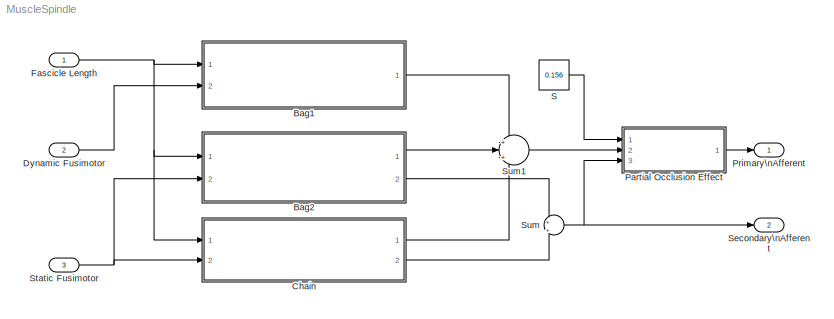
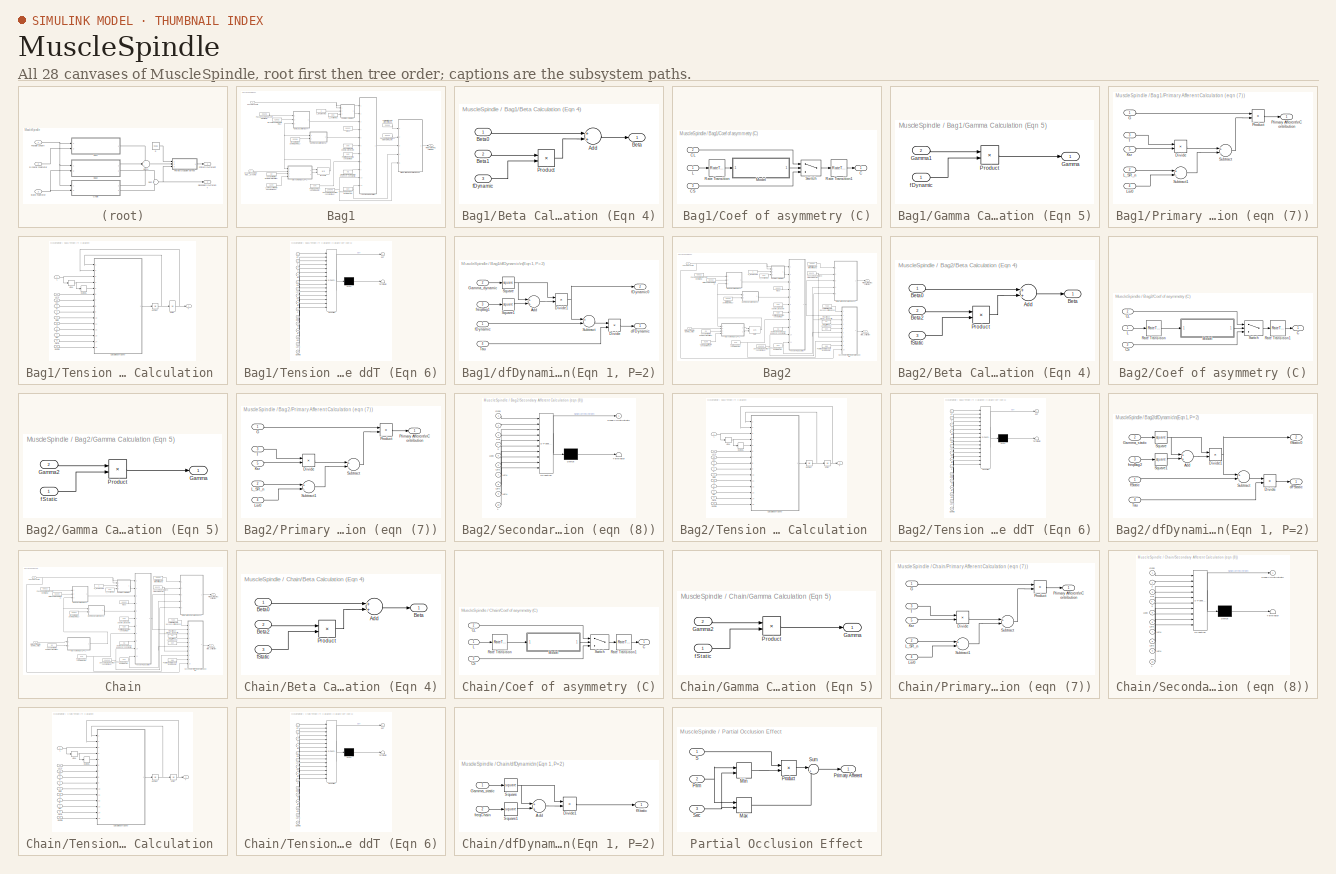
[diagram: thumbnail index - all 28 canvases of the model, root first then tree order]
MODEL MuscleSpindle
KIND model
BLOCK [SubSystem] Bag1
  Ports = [2, 1]
  RequestExecContextInheritance = off
  SID = 786
  Variant = off
BLOCK [SubSystem] Bag1/Beta Calculation (Eqn 4)
  Ports = [3, 1]
  RequestExecContextInheritance = off
  SID = 789
  Variant = off
BLOCK [Sum] Bag1/Beta Calculation (Eqn 4)/Add
  InputSameDT = off
  OutDataTypeStr = Inherit: Inherit via internal rule
  Ports = [2, 1]
  SID = 793
  SaturateOnIntegerOverflow = off
BLOCK [Outport] Bag1/Beta Calculation (Eqn 4)/Beta
  IconDisplay = Port number
  SID = 795
BLOCK [Inport] Bag1/Beta Calculation (Eqn 4)/Beta0
  IconDisplay = Port number
  SID = 790
BLOCK [Inport] Bag1/Beta Calculation (Eqn 4)/Beta1
  IconDisplay = Port number
  Port = 2
  SID = 791
BLOCK [Product] Bag1/Beta Calculation (Eqn 4)/Product
  InputSameDT = off
  OutDataTypeStr = Inherit: Inherit via internal rule
  Ports = [2, 1]
  SID = 794
  SaturateOnIntegerOverflow = off
BLOCK [Inport] Bag1/Beta Calculation (Eqn 4)/fDynamic
  IconDisplay = Port number
  Port = 3
  SID = 792
BLOCK [Constant] Bag1/C_lengthening
  SID = 797
BLOCK [Constant] Bag1/C_shortening
  SID = 798
  Value = 0.42
BLOCK [SubSystem] Bag1/Coef of asymmetry (C)
  Ports = [3, 1]
  RequestExecContextInheritance = off
  SID = 799
  Variant = off
BLOCK [Outport] Bag1/Coef of asymmetry (C)/C
  IconDisplay = Port number
  SID = 805
BLOCK [Inport] Bag1/Coef of asymmetry (C)/CL
  IconDisplay = Port number
  Port = 2
  SID = 801
BLOCK [Inport] Bag1/Coef of asymmetry (C)/CS
  IconDisplay = Port number
  Port = 3
  SID = 802
BLOCK [Inport] Bag1/Coef of asymmetry (C)/L
  IconDisplay = Port number
  SID = 800
BLOCK [ModelReference] Bag1/Coef of asymmetry (C)/Model
  ModelNameDialog = ContinuousDetectIncrease
  ModelReferenceVersion = 1.21
  Ports = [1, 1]
  SID = 981
  Variant = off
BLOCK [RateTransition] Bag1/Coef of asymmetry (C)/Rate Transition
  SID = 994
BLOCK [RateTransition] Bag1/Coef of asymmetry (C)/Rate Transition1
  SID = 997
BLOCK [Switch] Bag1/Coef of asymmetry (C)/Switch
  InputSameDT = off
  SID = 804
  SaturateOnIntegerOverflow = off
BLOCK [Constant] Bag1/Constant relating fusimotor\nfrequency to activation\n(freq)
  SID = 806
  Value = 60
BLOCK [Inport] Bag1/Dynamic Fusimotor\n(Gamma_dynamic)
  IconDisplay = Port number
  Port = 2
  SID = 788
BLOCK [Inport] Bag1/Fascicle Length
  IconDisplay = Port number
  SID = 787
BLOCK [Constant] Bag1/Fascicle length below\nwhich force is 0 (R)
  SID = 807
  Value = 0.46
BLOCK [SubSystem] Bag1/Gamma Calculation (Eqn 5)
  Ports = [2, 1]
  RequestExecContextInheritance = off
  SID = 808
  Variant = off
BLOCK [Outport] Bag1/Gamma Calculation (Eqn 5)/Gamma
  IconDisplay = Port number
  SID = 812
BLOCK [Inport] Bag1/Gamma Calculation (Eqn 5)/Gamma1
  IconDisplay = Port number
  Port = 2
  SID = 810
BLOCK [Product] Bag1/Gamma Calculation (Eqn 5)/Product
  InputSameDT = off
  OutDataTypeStr = Inherit: Inherit via internal rule
  Ports = [2, 1]
  SID = 811
  SaturateOnIntegerOverflow = off
BLOCK [Inport] Bag1/Gamma Calculation (Eqn 5)/fDynamic
  IconDisplay = Port number
  SID = 809
BLOCK [Constant] Bag1/Low-Pass Filter Time Constant\n(Tau)
  SID = 814
  Value = 0.149
BLOCK [Constant] Bag1/Mass
  SID = 815
  Value = 0.0002
BLOCK [Constant] Bag1/Nonlinear velocity\ndependence power\nconstant (a)
  SID = 816
  Value = 0.3
BLOCK [Constant] Bag1/Passive damping\ncoefficient (Beta)
  SID = 817
  Value = 0.0605
BLOCK [Constant] Bag1/Polar Zone Rest Length\n(Lpr0)
  SID = 818
  Value = 0.76
BLOCK [Constant] Bag1/Polar region\nspring constant (Kpr)
  SID = 819
  Value = 0.15
BLOCK [SubSystem] Bag1/Primary Afferent Calculation (eqn (7))
  Ports = [5, 1]
  RequestExecContextInheritance = off
  SID = 820
  Variant = off
BLOCK [Product] Bag1/Primary Afferent Calculation (eqn (7))/Divide
  InputSameDT = off
  Inputs = */
  OutDataTypeStr = Inherit: Inherit via internal rule
  Ports = [2, 1]
  RndMeth = Floor
  SID = 826
  SaturateOnIntegerOverflow = off
BLOCK [Inport] Bag1/Primary Afferent Calculation (eqn (7))/G
  IconDisplay = Port number
  SID = 821
BLOCK [Inport] Bag1/Primary Afferent Calculation (eqn (7))/Ksr
  IconDisplay = Port number
  Port = 5
  SID = 825
BLOCK [Inport] Bag1/Primary Afferent Calculation (eqn (7))/L_SR_n
  IconDisplay = Port number
  Port = 2
  SID = 822
BLOCK [Inport] Bag1/Primary Afferent Calculation (eqn (7))/Lsr0
  IconDisplay = Port number
  Port = 4
  SID = 824
BLOCK [Outport] Bag1/Primary Afferent Calculation (eqn (7))/Primary Afferent\nContribution
  IconDisplay = Port number
  SID = 830
BLOCK [Product] Bag1/Primary Afferent Calculation (eqn (7))/Product
  InputSameDT = off
  OutDataTypeStr = Inherit: Inherit via internal rule
  Ports = [2, 1]
  SID = 827
  SaturateOnIntegerOverflow = off
BLOCK [Sum] Bag1/Primary Afferent Calculation (eqn (7))/Subtract
  InputSameDT = off
  Inputs = +-
  OutDataTypeStr = Inherit: Inherit via internal rule
  Ports = [2, 1]
  SID = 828
  SaturateOnIntegerOverflow = off
BLOCK [Sum] Bag1/Primary Afferent Calculation (eqn (7))/Subtract1
  InputSameDT = off
  Inputs = +-
  OutDataTypeStr = Inherit: Inherit via internal rule
  Ports = [2, 1]
  SID = 829
  SaturateOnIntegerOverflow = off
BLOCK [Inport] Bag1/Primary Afferent Calculation (eqn (7))/T
  IconDisplay = Port number
  Port = 3
  SID = 823
BLOCK [Outport] Bag1/Primary Afferent\nContribution
  IconDisplay = Port number
  SID = 868
BLOCK [Constant] Bag1/Sensory region\nrest length\n(Lsr0)
  SID = 831
  Value = 0.04
BLOCK [Constant] Bag1/Sensory region\nspring constant\nKsr
  SID = 832
  Value = 10.4649
BLOCK [Constant] Bag1/Sensory region\nthreshold length\n(LsrN)
  SID = 833
  Value = 0.0423
BLOCK [SubSystem] Bag1/Tension (T) Calculation 
  Ports = [11, 1]
  RequestExecContextInheritance = off
  SID = 834
  Variant = off
BLOCK [Inport] Bag1/Tension (T) Calculation /Beta
  IconDisplay = Port number
  Port = 3
  SID = 837
BLOCK [Inport] Bag1/Tension (T) Calculation /C
  IconDisplay = Port number
  Port = 2
  SID = 836
BLOCK [SubSystem] Bag1/Tension (T) Calculation /Calculate ddT (Eqn 6)
  ErrorFcn = Stateflow.Translate.translate
  PermitHierarchicalResolution = ExplicitOnly
  Ports = [15, 1]
  RequestExecContextInheritance = off
  SFBlockType = MATLAB Function
  SID = 846
  TreatAsAtomicUnit = on
  Variant = off
BLOCK [Demux] Bag1/Tension (T) Calculation /Calculate ddT (Eqn 6)/ Demux 
  Outputs = 1
  Ports = [1, 1]
  SID = 846::41
BLOCK [S-Function] Bag1/Tension (T) Calculation /Calculate ddT (Eqn 6)/ SFunction 
  EnableBusSupport = on
  FunctionName = sf_sfun
  PortCounts = [15 2]
  Ports = [15, 2]
  SFcnIsStateOwnerBlock = off
  SFunctionDeploymentMode = off
  SID = 846::40
  Tag = Stateflow S-Function MuscleSpindle 2
BLOCK [Terminator] Bag1/Tension (T) Calculation /Calculate ddT (Eqn 6)/ Terminator 
  SID = 846::42
BLOCK [Inport] Bag1/Tension (T) Calculation /Calculate ddT (Eqn 6)/Beta
  IconDisplay = Port number
  Port = 10
  SID = 846::25
BLOCK [Inport] Bag1/Tension (T) Calculation /Calculate ddT (Eqn 6)/C
  IconDisplay = Port number
  Port = 9
  SID = 846::24
BLOCK [Inport] Bag1/Tension (T) Calculation /Calculate ddT (Eqn 6)/Gamma
  IconDisplay = Port number
  Port = 15
  SID = 846::38
BLOCK [Inport] Bag1/Tension (T) Calculation /Calculate ddT (Eqn 6)/Kpr
  IconDisplay = Port number
  Port = 13
  SID = 846::34
BLOCK [Inport] Bag1/Tension (T) Calculation /Calculate ddT (Eqn 6)/Ksr
  IconDisplay = Port number
  Port = 7
  SID = 846::1
BLOCK [Inport] Bag1/Tension (T) Calculation /Calculate ddT (Eqn 6)/L
  IconDisplay = Port number
  Port = 3
  SID = 846::28
BLOCK [Inport] Bag1/Tension (T) Calculation /Calculate ddT (Eqn 6)/Lpr0
  IconDisplay = Port number
  Port = 14
  SID = 846::35
BLOCK [Inport] Bag1/Tension (T) Calculation /Calculate ddT (Eqn 6)/Lsr0
  IconDisplay = Port number
  Port = 6
  SID = 846::29
BLOCK [Inport] Bag1/Tension (T) Calculation /Calculate ddT (Eqn 6)/M
  IconDisplay = Port number
  Port = 8
  SID = 846::23
BLOCK [Inport] Bag1/Tension (T) Calculation /Calculate ddT (Eqn 6)/R
  IconDisplay = Port number
  Port = 12
  SID = 846::33
BLOCK [Inport] Bag1/Tension (T) Calculation /Calculate ddT (Eqn 6)/T
  IconDisplay = Port number
  Port = 2
  SID = 846::30
BLOCK [Inport] Bag1/Tension (T) Calculation /Calculate ddT (Eqn 6)/a
  IconDisplay = Port number
  Port = 11
  SID = 846::32
BLOCK [Inport] Bag1/Tension (T) Calculation /Calculate ddT (Eqn 6)/dL
  IconDisplay = Port number
  Port = 4
  SID = 846::26
BLOCK [Inport] Bag1/Tension (T) Calculation /Calculate ddT (Eqn 6)/dT
  IconDisplay = Port number
  SID = 846::27
BLOCK [Inport] Bag1/Tension (T) Calculation /Calculate ddT (Eqn 6)/ddL
  IconDisplay = Port number
  Port = 5
  SID = 846::37
BLOCK [Outport] Bag1/Tension (T) Calculation /Calculate ddT (Eqn 6)/ddT
  IconDisplay = Port number
  SID = 846::5
BLOCK [Inport] Bag1/Tension (T) Calculation /Gamma
  IconDisplay = Port number
  Port = 5
  SID = 839
BLOCK [Inport] Bag1/Tension (T) Calculation /Kpr
  IconDisplay = Port number
  Port = 7
  SID = 841
BLOCK [Inport] Bag1/Tension (T) Calculation /Ksr
  IconDisplay = Port number
  Port = 10
  SID = 844
BLOCK [Inport] Bag1/Tension (T) Calculation /L
  IconDisplay = Port number
  SID = 835
BLOCK [Derivative] Bag1/Tension (T) Calculation /L to dL
  CoefficientInTFapproximation = Inf
  SID = 847
BLOCK [Inport] Bag1/Tension (T) Calculation /Lpr0
  IconDisplay = Port number
  Port = 8
  SID = 842
BLOCK [Inport] Bag1/Tension (T) Calculation /Lsr0
  IconDisplay = Port number
  Port = 11
  SID = 845
BLOCK [Inport] Bag1/Tension (T) Calculation /M
  IconDisplay = Port number
  Port = 4
  SID = 838
BLOCK [Inport] Bag1/Tension (T) Calculation /R
  IconDisplay = Port number
  Port = 6
  SID = 840
BLOCK [Outport] Bag1/Tension (T) Calculation /T
  IconDisplay = Port number
  SID = 851
BLOCK [Inport] Bag1/Tension (T) Calculation /a
  IconDisplay = Port number
  Port = 9
  SID = 843
BLOCK [Derivative] Bag1/Tension (T) Calculation /dL to ddL
  CoefficientInTFapproximation = Inf
  SID = 848
BLOCK [Integrator] Bag1/Tension (T) Calculation /dT to T
  Ports = [1, 1]
  SID = 849
BLOCK [Integrator] Bag1/Tension (T) Calculation /ddT to dT
  Ports = [1, 1]
  SID = 850
BLOCK [Constant] Bag1/Term for Stretch\nto Afferent Firing\nG
  SID = 852
  Value = 20000
BLOCK [SubSystem] Bag1/dfDynamic\n(Eqn 1, P=2)
  Ports = [4, 2]
  RequestExecContextInheritance = off
  SID = 853
  Variant = off
BLOCK [Sum] Bag1/dfDynamic\n(Eqn 1, P=2)/Add
  InputSameDT = off
  OutDataTypeStr = Inherit: Inherit via internal rule
  Ports = [2, 1]
  SID = 858
  SaturateOnIntegerOverflow = off
BLOCK [Product] Bag1/dfDynamic\n(Eqn 1, P=2)/Divide
  InputSameDT = off
  Inputs = */
  OutDataTypeStr = Inherit: Inherit via internal rule
  Ports = [2, 1]
  RndMeth = Floor
  SID = 859
  SaturateOnIntegerOverflow = off
BLOCK [Product] Bag1/dfDynamic\n(Eqn 1, P=2)/Divide1
  InputSameDT = off
  Inputs = */
  OutDataTypeStr = Inherit: Inherit via internal rule
  Ports = [2, 1]
  RndMeth = Floor
  SID = 860
  SaturateOnIntegerOverflow = off
BLOCK [Inport] Bag1/dfDynamic\n(Eqn 1, P=2)/Gamma_dynamic
  IconDisplay = Port number
  Port = 2
  SID = 855
BLOCK [Math] Bag1/dfDynamic\n(Eqn 1, P=2)/Square
  Operator = square
  Ports = [1, 1]
  SID = 861
BLOCK [Math] Bag1/dfDynamic\n(Eqn 1, P=2)/Square1
  Operator = square
  Ports = [1, 1]
  SID = 862
BLOCK [Sum] Bag1/dfDynamic\n(Eqn 1, P=2)/Subtract
  InputSameDT = off
  Inputs = +-
  OutDataTypeStr = Inherit: Inherit via internal rule
  Ports = [2, 1]
  SID = 863
  SaturateOnIntegerOverflow = off
BLOCK [Inport] Bag1/dfDynamic\n(Eqn 1, P=2)/Tau
  IconDisplay = Port number
  Port = 4
  SID = 857
BLOCK [Outport] Bag1/dfDynamic\n(Eqn 1, P=2)/dFDynamic
  IconDisplay = Port number
  SID = 864
BLOCK [Inport] Bag1/dfDynamic\n(Eqn 1, P=2)/fDynamic
  IconDisplay = Port number
  SID = 854
BLOCK [Outport] Bag1/dfDynamic\n(Eqn 1, P=2)/fDynamic0
  IconDisplay = Port number
  Port = 2
  SID = 1132
BLOCK [Inport] Bag1/dfDynamic\n(Eqn 1, P=2)/freqBag1
  IconDisplay = Port number
  Port = 3
  SID = 856
BLOCK [Integrator] Bag1/fDynamic
  InitialConditionSource = external
  Ports = [2, 1]
  SID = 865
BLOCK [Constant] Bag1/fDynamic damping\n(Beta1)
  SID = 866
  Value = 0.2592
BLOCK [Constant] Bag1/fDynamic force gent\n(Gamma1)
  SID = 867
  Value = 0.0289
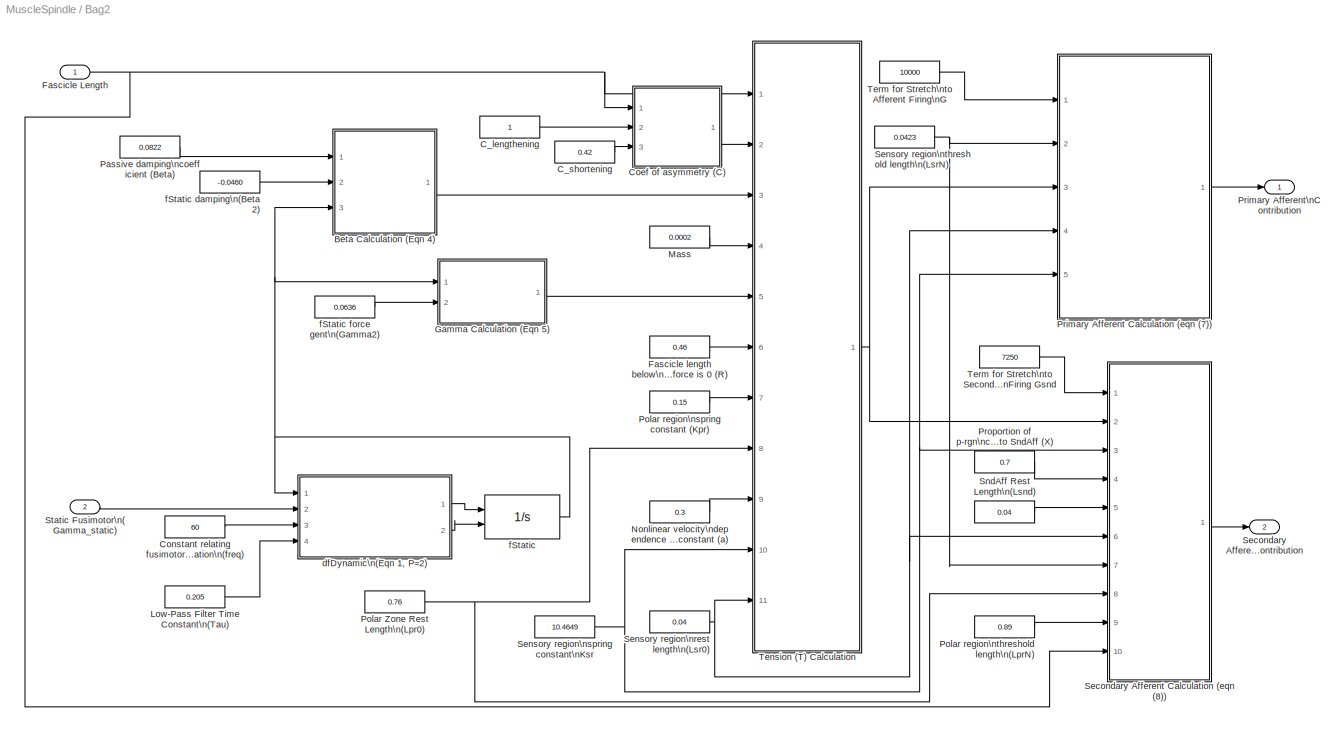
BLOCK [SubSystem] Bag2
  Ports = [2, 2]
  RequestExecContextInheritance = off
  SID = 872
  Variant = off
BLOCK [SubSystem] Bag2/Beta Calculation (Eqn 4)
  Ports = [3, 1]
  RequestExecContextInheritance = off
  SID = 875
  Variant = off
BLOCK [Sum] Bag2/Beta Calculation (Eqn 4)/Add
  InputSameDT = off
  OutDataTypeStr = Inherit: Inherit via internal rule
  Ports = [2, 1]
  SID = 879
  SaturateOnIntegerOverflow = off
BLOCK [Outport] Bag2/Beta Calculation (Eqn 4)/Beta
  IconDisplay = Port number
  SID = 881
BLOCK [Inport] Bag2/Beta Calculation (Eqn 4)/Beta0
  IconDisplay = Port number
  SID = 876
BLOCK [Inport] Bag2/Beta Calculation (Eqn 4)/Beta2
  IconDisplay = Port number
  Port = 2
  SID = 877
BLOCK [Product] Bag2/Beta Calculation (Eqn 4)/Product
  InputSameDT = off
  OutDataTypeStr = Inherit: Inherit via internal rule
  Ports = [2, 1]
  SID = 880
  SaturateOnIntegerOverflow = off
BLOCK [Inport] Bag2/Beta Calculation (Eqn 4)/fStatic
  IconDisplay = Port number
  Port = 3
  SID = 878
BLOCK [Constant] Bag2/C_lengthening
  SID = 883
BLOCK [Constant] Bag2/C_shortening
  SID = 884
  Value = 0.42
BLOCK [SubSystem] Bag2/Coef of asymmetry (C)
  Ports = [3, 1]
  RequestExecContextInheritance = off
  SID = 885
  Variant = off
BLOCK [Outport] Bag2/Coef of asymmetry (C)/C
  IconDisplay = Port number
  SID = 891
BLOCK [Inport] Bag2/Coef of asymmetry (C)/CL
  IconDisplay = Port number
  Port = 2
  SID = 887
BLOCK [Inport] Bag2/Coef of asymmetry (C)/CS
  IconDisplay = Port number
  Port = 3
  SID = 888
BLOCK [Inport] Bag2/Coef of asymmetry (C)/L
  IconDisplay = Port number
  SID = 886
BLOCK [ModelReference] Bag2/Coef of asymmetry (C)/Model
  ModelNameDialog = ContinuousDetectIncrease
  ModelReferenceVersion = 1.21
  Ports = [1, 1]
  SID = 988
  Variant = off
BLOCK [RateTransition] Bag2/Coef of asymmetry (C)/Rate Transition
  SID = 995
BLOCK [RateTransition] Bag2/Coef of asymmetry (C)/Rate Transition1
  SID = 1000
BLOCK [Switch] Bag2/Coef of asymmetry (C)/Switch
  InputSameDT = off
  SID = 890
  SaturateOnIntegerOverflow = off
BLOCK [Constant] Bag2/Constant relating fusimotor\nfrequency to activation\n(freq)
  SID = 892
  Value = 60
BLOCK [Inport] Bag2/Fascicle Length
  IconDisplay = Port number
  SID = 873
BLOCK [Constant] Bag2/Fascicle length below\nwhich force is 0 (R)
  SID = 893
  Value = 0.46
BLOCK [SubSystem] Bag2/Gamma Calculation (Eqn 5)
  Ports = [2, 1]
  RequestExecContextInheritance = off
  SID = 894
  Variant = off
BLOCK [Outport] Bag2/Gamma Calculation (Eqn 5)/Gamma
  IconDisplay = Port number
  SID = 898
BLOCK [Inport] Bag2/Gamma Calculation (Eqn 5)/Gamma2
  IconDisplay = Port number
  Port = 2
  SID = 896
BLOCK [Product] Bag2/Gamma Calculation (Eqn 5)/Product
  InputSameDT = off
  OutDataTypeStr = Inherit: Inherit via internal rule
  Ports = [2, 1]
  SID = 897
  SaturateOnIntegerOverflow = off
BLOCK [Inport] Bag2/Gamma Calculation (Eqn 5)/fStatic
  IconDisplay = Port number
  SID = 895
BLOCK [Constant] Bag2/Low-Pass Filter Time Constant\n(Tau)
  SID = 900
  Value = 0.205
BLOCK [Constant] Bag2/Mass
  SID = 901
  Value = 0.0002
BLOCK [Constant] Bag2/Nonlinear velocity\ndependence power\nconstant (a)
  SID = 902
  Value = 0.3
BLOCK [Constant] Bag2/Passive damping\ncoefficient (Beta)
  SID = 903
  Value = 0.0822
BLOCK [Constant] Bag2/Polar Zone Rest Length\n(Lpr0)
  SID = 904
  Value = 0.76
BLOCK [Constant] Bag2/Polar region\nspring constant (Kpr)
  SID = 905
  Value = 0.15
BLOCK [Constant] Bag2/Polar region\nthreshold length\n(LprN)
  SID = 976
  Value = 0.89
BLOCK [SubSystem] Bag2/Primary Afferent Calculation (eqn (7))
  Ports = [5, 1]
  RequestExecContextInheritance = off
  SID = 906
  Variant = off
BLOCK [Product] Bag2/Primary Afferent Calculation (eqn (7))/Divide
  InputSameDT = off
  Inputs = */
  OutDataTypeStr = Inherit: Inherit via internal rule
  Ports = [2, 1]
  RndMeth = Floor
  SID = 912
  SaturateOnIntegerOverflow = off
BLOCK [Inport] Bag2/Primary Afferent Calculation (eqn (7))/G
  IconDisplay = Port number
  SID = 907
BLOCK [Inport] Bag2/Primary Afferent Calculation (eqn (7))/Ksr
  IconDisplay = Port number
  Port = 5
  SID = 911
BLOCK [Inport] Bag2/Primary Afferent Calculation (eqn (7))/L_SR_n
  IconDisplay = Port number
  Port = 2
  SID = 908
BLOCK [Inport] Bag2/Primary Afferent Calculation (eqn (7))/Lsr0
  IconDisplay = Port number
  Port = 4
  SID = 910
BLOCK [Outport] Bag2/Primary Afferent Calculation (eqn (7))/Primary Afferent\nContribution
  IconDisplay = Port number
  SID = 916
BLOCK [Product] Bag2/Primary Afferent Calculation (eqn (7))/Product
  InputSameDT = off
  OutDataTypeStr = Inherit: Inherit via internal rule
  Ports = [2, 1]
  SID = 913
  SaturateOnIntegerOverflow = off
BLOCK [Sum] Bag2/Primary Afferent Calculation (eqn (7))/Subtract
  InputSameDT = off
  Inputs = +-
  OutDataTypeStr = Inherit: Inherit via internal rule
  Ports = [2, 1]
  SID = 914
  SaturateOnIntegerOverflow = off
BLOCK [Sum] Bag2/Primary Afferent Calculation (eqn (7))/Subtract1
  InputSameDT = off
  Inputs = +-
  OutDataTypeStr = Inherit: Inherit via internal rule
  Ports = [2, 1]
  SID = 915
  SaturateOnIntegerOverflow = off
BLOCK [Inport] Bag2/Primary Afferent Calculation (eqn (7))/T
  IconDisplay = Port number
  Port = 3
  SID = 909
BLOCK [Outport] Bag2/Primary Afferent\nContribution
  IconDisplay = Port number
  SID = 954
BLOCK [Constant] Bag2/Proportion of p-rgn\ncont. to SndAff (X)
  SID = 974
  Value = 0.7
BLOCK [SubSystem] Bag2/Secondary Afferent Calculation (eqn (8))
  ErrorFcn = Stateflow.Translate.translate
  PermitHierarchicalResolution = ExplicitOnly
  Ports = [10, 1]
  RequestExecContextInheritance = off
  SFBlockType = MATLAB Function
  SID = 971
  TreatAsAtomicUnit = on
  Variant = off
BLOCK [Demux] Bag2/Secondary Afferent Calculation (eqn (8))/ Demux 
  Outputs = 1
  Ports = [1, 1]
  SID = 971::33
BLOCK [S-Function] Bag2/Secondary Afferent Calculation (eqn (8))/ SFunction 
  EnableBusSupport = on
  FunctionName = sf_sfun
  PortCounts = [10 2]
  Ports = [10, 2]
  SFcnIsStateOwnerBlock = off
  SFunctionDeploymentMode = off
  SID = 971::32
  Tag = Stateflow S-Function MuscleSpindle 3
BLOCK [Terminator] Bag2/Secondary Afferent Calculation (eqn (8))/ Terminator 
  SID = 971::34
BLOCK [Inport] Bag2/Secondary Afferent Calculation (eqn (8))/Gsnd
  IconDisplay = Port number
  SID = 971::1
BLOCK [Inport] Bag2/Secondary Afferent Calculation (eqn (8))/Ksr
  IconDisplay = Port number
  Port = 3
  SID = 971::26
BLOCK [Inport] Bag2/Secondary Afferent Calculation (eqn (8))/L
  IconDisplay = Port number
  Port = 10
  SID = 971::30
BLOCK [Inport] Bag2/Secondary Afferent Calculation (eqn (8))/Lpr0
  IconDisplay = Port number
  Port = 8
  SID = 971::29
BLOCK [Inport] Bag2/Secondary Afferent Calculation (eqn (8))/LprN
  IconDisplay = Port number
  Port = 9
  SID = 971::31
BLOCK [Inport] Bag2/Secondary Afferent Calculation (eqn (8))/Lsnd
  IconDisplay = Port number
  Port = 5
  SID = 971::23
BLOCK [Inport] Bag2/Secondary Afferent Calculation (eqn (8))/Lsr0
  IconDisplay = Port number
  Port = 6
  SID = 971::24
BLOCK [Inport] Bag2/Secondary Afferent Calculation (eqn (8))/LsrN
  IconDisplay = Port number
  Port = 7
  SID = 971::27
BLOCK [Outport] Bag2/Secondary Afferent Calculation (eqn (8))/ScndryAffrntCntrbtn
  IconDisplay = Port number
  SID = 971::5
BLOCK [Inport] Bag2/Secondary Afferent Calculation (eqn (8))/T
  IconDisplay = Port number
  Port = 2
  SID = 971::25
BLOCK [Inport] Bag2/Secondary Afferent Calculation (eqn (8))/X
  IconDisplay = Port number
  Port = 4
  SID = 971::28
BLOCK [Outport] Bag2/Secondary Afferent\nContribution
  IconDisplay = Port number
  Port = 2
  SID = 969
BLOCK [Constant] Bag2/Sensory region\nrest length\n(Lsr0)
  SID = 917
  Value = 0.04
BLOCK [Constant] Bag2/Sensory region\nspring constant\nKsr
  SID = 918
  Value = 10.4649
BLOCK [Constant] Bag2/Sensory region\nthreshold length\n(LsrN)
  SID = 919
  Value = 0.0423
BLOCK [Constant] Bag2/SndAff Rest Length\n(Lsnd)
  SID = 975
  Value = 0.04
BLOCK [Inport] Bag2/Static Fusimotor\n(Gamma_static)
  IconDisplay = Port number
  Port = 2
  SID = 874
BLOCK [SubSystem] Bag2/Tension (T) Calculation 
  Ports = [11, 1]
  RequestExecContextInheritance = off
  SID = 920
  Variant = off
BLOCK [Inport] Bag2/Tension (T) Calculation /Beta
  IconDisplay = Port number
  Port = 3
  SID = 923
BLOCK [Inport] Bag2/Tension (T) Calculation /C
  IconDisplay = Port number
  Port = 2
  SID = 922
BLOCK [SubSystem] Bag2/Tension (T) Calculation /Calculate ddT (Eqn 6)
  ErrorFcn = Stateflow.Translate.translate
  PermitHierarchicalResolution = ExplicitOnly
  Ports = [15, 1]
  RequestExecContextInheritance = off
  SFBlockType = MATLAB Function
  SID = 932
  TreatAsAtomicUnit = on
  Variant = off
BLOCK [Demux] Bag2/Tension (T) Calculation /Calculate ddT (Eqn 6)/ Demux 
  Outputs = 1
  Ports = [1, 1]
  SID = 932::40
BLOCK [S-Function] Bag2/Tension (T) Calculation /Calculate ddT (Eqn 6)/ SFunction 
  EnableBusSupport = on
  FunctionName = sf_sfun
  PortCounts = [15 2]
  Ports = [15, 2]
  SFcnIsStateOwnerBlock = off
  SFunctionDeploymentMode = off
  SID = 932::39
  Tag = Stateflow S-Function MuscleSpindle 1
BLOCK [Terminator] Bag2/Tension (T) Calculation /Calculate ddT (Eqn 6)/ Terminator 
  SID = 932::41
BLOCK [Inport] Bag2/Tension (T) Calculation /Calculate ddT (Eqn 6)/Beta
  IconDisplay = Port number
  Port = 10
  SID = 932::25
BLOCK [Inport] Bag2/Tension (T) Calculation /Calculate ddT (Eqn 6)/C
  IconDisplay = Port number
  Port = 9
  SID = 932::24
BLOCK [Inport] Bag2/Tension (T) Calculation /Calculate ddT (Eqn 6)/Gamma
  IconDisplay = Port number
  Port = 15
  SID = 932::38
BLOCK [Inport] Bag2/Tension (T) Calculation /Calculate ddT (Eqn 6)/Kpr
  IconDisplay = Port number
  Port = 13
  SID = 932::34
BLOCK [Inport] Bag2/Tension (T) Calculation /Calculate ddT (Eqn 6)/Ksr
  IconDisplay = Port number
  Port = 7
  SID = 932::1
BLOCK [Inport] Bag2/Tension (T) Calculation /Calculate ddT (Eqn 6)/L
  IconDisplay = Port number
  Port = 3
  SID = 932::28
BLOCK [Inport] Bag2/Tension (T) Calculation /Calculate ddT (Eqn 6)/Lpr0
  IconDisplay = Port number
  Port = 14
  SID = 932::35
BLOCK [Inport] Bag2/Tension (T) Calculation /Calculate ddT (Eqn 6)/Lsr0
  IconDisplay = Port number
  Port = 6
  SID = 932::29
BLOCK [Inport] Bag2/Tension (T) Calculation /Calculate ddT (Eqn 6)/M
  IconDisplay = Port number
  Port = 8
  SID = 932::23
BLOCK [Inport] Bag2/Tension (T) Calculation /Calculate ddT (Eqn 6)/R
  IconDisplay = Port number
  Port = 12
  SID = 932::33
BLOCK [Inport] Bag2/Tension (T) Calculation /Calculate ddT (Eqn 6)/T
  IconDisplay = Port number
  Port = 2
  SID = 932::30
BLOCK [Inport] Bag2/Tension (T) Calculation /Calculate ddT (Eqn 6)/a
  IconDisplay = Port number
  Port = 11
  SID = 932::32
BLOCK [Inport] Bag2/Tension (T) Calculation /Calculate ddT (Eqn 6)/dL
  IconDisplay = Port number
  Port = 4
  SID = 932::26
BLOCK [Inport] Bag2/Tension (T) Calculation /Calculate ddT (Eqn 6)/dT
  IconDisplay = Port number
  SID = 932::27
BLOCK [Inport] Bag2/Tension (T) Calculation /Calculate ddT (Eqn 6)/ddL
  IconDisplay = Port number
  Port = 5
  SID = 932::37
BLOCK [Outport] Bag2/Tension (T) Calculation /Calculate ddT (Eqn 6)/ddT
  IconDisplay = Port number
  SID = 932::5
BLOCK [Inport] Bag2/Tension (T) Calculation /Gamma
  IconDisplay = Port number
  Port = 5
  SID = 925
BLOCK [Inport] Bag2/Tension (T) Calculation /Kpr
  IconDisplay = Port number
  Port = 7
  SID = 927
BLOCK [Inport] Bag2/Tension (T) Calculation /Ksr
  IconDisplay = Port number
  Port = 10
  SID = 930
BLOCK [Inport] Bag2/Tension (T) Calculation /L
  IconDisplay = Port number
  SID = 921
BLOCK [Derivative] Bag2/Tension (T) Calculation /L to dL
  CoefficientInTFapproximation = Inf
  SID = 933
BLOCK [Inport] Bag2/Tension (T) Calculation /Lpr0
  IconDisplay = Port number
  Port = 8
  SID = 928
BLOCK [Inport] Bag2/Tension (T) Calculation /Lsr0
  IconDisplay = Port number
  Port = 11
  SID = 931
BLOCK [Inport] Bag2/Tension (T) Calculation /M
  IconDisplay = Port number
  Port = 4
  SID = 924
BLOCK [Inport] Bag2/Tension (T) Calculation /R
  IconDisplay = Port number
  Port = 6
  SID = 926
BLOCK [Outport] Bag2/Tension (T) Calculation /T
  IconDisplay = Port number
  SID = 937
BLOCK [Inport] Bag2/Tension (T) Calculation /a
  IconDisplay = Port number
  Port = 9
  SID = 929
BLOCK [Derivative] Bag2/Tension (T) Calculation /dL to ddL
  CoefficientInTFapproximation = Inf
  SID = 934
BLOCK [Integrator] Bag2/Tension (T) Calculation /dT to T
  Ports = [1, 1]
  SID = 935
BLOCK [Integrator] Bag2/Tension (T) Calculation /ddT to dT
  Ports = [1, 1]
  SID = 936
BLOCK [Constant] Bag2/Term for Stretch\nto Afferent Firing\nG
  SID = 938
  Value = 10000
BLOCK [Constant] Bag2/Term for Stretch\nto Secondary Afferent\nFiring Gsnd
  SID = 973
  Value = 7250
BLOCK [SubSystem] Bag2/dfDynamic\n(Eqn 1, P=2)
  Ports = [4, 2]
  RequestExecContextInheritance = off
  SID = 939
  Variant = off
BLOCK [Sum] Bag2/dfDynamic\n(Eqn 1, P=2)/Add
  InputSameDT = off
  OutDataTypeStr = Inherit: Inherit via internal rule
  Ports = [2, 1]
  SID = 944
  SaturateOnIntegerOverflow = off
BLOCK [Product] Bag2/dfDynamic\n(Eqn 1, P=2)/Divide
  InputSameDT = off
  Inputs = */
  OutDataTypeStr = Inherit: Inherit via internal rule
  Ports = [2, 1]
  RndMeth = Floor
  SID = 945
  SaturateOnIntegerOverflow = off
BLOCK [Product] Bag2/dfDynamic\n(Eqn 1, P=2)/Divide1
  InputSameDT = off
  Inputs = */
  OutDataTypeStr = Inherit: Inherit via internal rule
  Ports = [2, 1]
  RndMeth = Floor
  SID = 946
  SaturateOnIntegerOverflow = off
BLOCK [Inport] Bag2/dfDynamic\n(Eqn 1, P=2)/Gamma_static
  IconDisplay = Port number
  Port = 2
  SID = 941
BLOCK [Math] Bag2/dfDynamic\n(Eqn 1, P=2)/Square
  Operator = square
  Ports = [1, 1]
  SID = 947
BLOCK [Math] Bag2/dfDynamic\n(Eqn 1, P=2)/Square1
  Operator = square
  Ports = [1, 1]
  SID = 948
BLOCK [Sum] Bag2/dfDynamic\n(Eqn 1, P=2)/Subtract
  InputSameDT = off
  Inputs = +-
  OutDataTypeStr = Inherit: Inherit via internal rule
  Ports = [2, 1]
  SID = 949
  SaturateOnIntegerOverflow = off
BLOCK [Inport] Bag2/dfDynamic\n(Eqn 1, P=2)/Tau
  IconDisplay = Port number
  Port = 4
  SID = 943
BLOCK [Outport] Bag2/dfDynamic\n(Eqn 1, P=2)/dFStatic
  IconDisplay = Port number
  SID = 950
BLOCK [Inport] Bag2/dfDynamic\n(Eqn 1, P=2)/fStatic
  IconDisplay = Port number
  SID = 940
BLOCK [Outport] Bag2/dfDynamic\n(Eqn 1, P=2)/fStatic0
  IconDisplay = Port number
  Port = 2
  SID = 1134
BLOCK [Inport] Bag2/dfDynamic\n(Eqn 1, P=2)/freqBag2
  IconDisplay = Port number
  Port = 3
  SID = 942
BLOCK [Integrator] Bag2/fStatic
  InitialConditionSource = external
  Ports = [2, 1]
  SID = 951
BLOCK [Constant] Bag2/fStatic damping\n(Beta2)
  SID = 952
  Value = -0.0460
BLOCK [Constant] Bag2/fStatic force gent\n(Gamma2)
  SID = 953
  Value = 0.0636
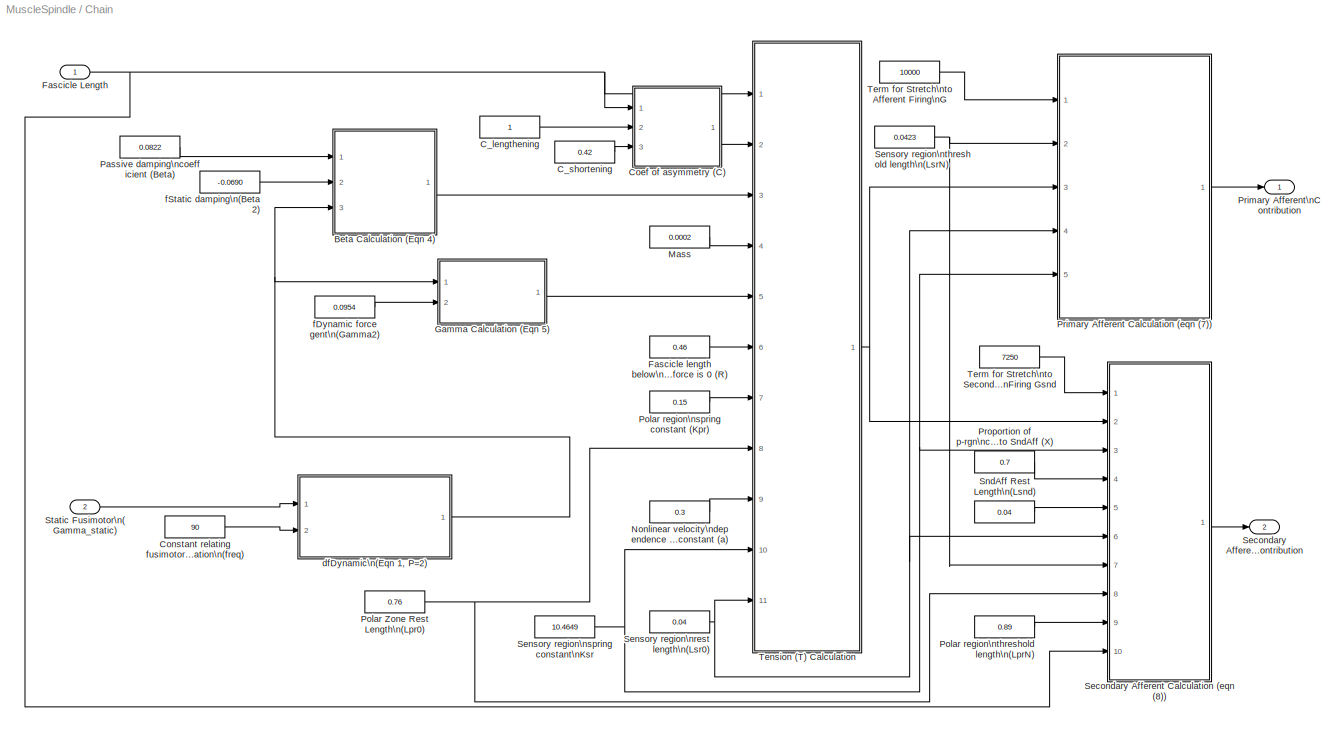
BLOCK [SubSystem] Chain
  Ports = [2, 2]
  RequestExecContextInheritance = off
  SID = 1001
  Variant = off
BLOCK [SubSystem] Chain/Beta Calculation (Eqn 4)
  Ports = [3, 1]
  RequestExecContextInheritance = off
  SID = 1004
  Variant = off
BLOCK [Sum] Chain/Beta Calculation (Eqn 4)/Add
  InputSameDT = off
  OutDataTypeStr = Inherit: Inherit via internal rule
  Ports = [2, 1]
  SID = 1008
  SaturateOnIntegerOverflow = off
BLOCK [Outport] Chain/Beta Calculation (Eqn 4)/Beta
  IconDisplay = Port number
  SID = 1010
BLOCK [Inport] Chain/Beta Calculation (Eqn 4)/Beta0
  IconDisplay = Port number
  SID = 1005
BLOCK [Inport] Chain/Beta Calculation (Eqn 4)/Beta2
  IconDisplay = Port number
  Port = 2
  SID = 1006
BLOCK [Product] Chain/Beta Calculation (Eqn 4)/Product
  InputSameDT = off
  OutDataTypeStr = Inherit: Inherit via internal rule
  Ports = [2, 1]
  SID = 1009
  SaturateOnIntegerOverflow = off
BLOCK [Inport] Chain/Beta Calculation (Eqn 4)/fStatic
  IconDisplay = Port number
  Port = 3
  SID = 1007
BLOCK [Constant] Chain/C_lengthening
  SID = 1012
BLOCK [Constant] Chain/C_shortening
  SID = 1013
  Value = 0.42
BLOCK [SubSystem] Chain/Coef of asymmetry (C)
  Ports = [3, 1]
  RequestExecContextInheritance = off
  SID = 1014
  Variant = off
BLOCK [Outport] Chain/Coef of asymmetry (C)/C
  IconDisplay = Port number
  SID = 1022
BLOCK [Inport] Chain/Coef of asymmetry (C)/CL
  IconDisplay = Port number
  Port = 2
  SID = 1016
BLOCK [Inport] Chain/Coef of asymmetry (C)/CS
  IconDisplay = Port number
  Port = 3
  SID = 1017
BLOCK [Inport] Chain/Coef of asymmetry (C)/L
  IconDisplay = Port number
  SID = 1015
BLOCK [ModelReference] Chain/Coef of asymmetry (C)/Model
  ModelNameDialog = ContinuousDetectIncrease
  ModelReferenceVersion = 1.21
  Ports = [1, 1]
  SID = 1018
  Variant = off
BLOCK [RateTransition] Chain/Coef of asymmetry (C)/Rate Transition
  SID = 1019
BLOCK [RateTransition] Chain/Coef of asymmetry (C)/Rate Transition1
  SID = 1020
BLOCK [Switch] Chain/Coef of asymmetry (C)/Switch
  InputSameDT = off
  SID = 1021
  SaturateOnIntegerOverflow = off
BLOCK [Constant] Chain/Constant relating fusimotor\nfrequency to activation\n(freq)
  SID = 1023
  Value = 90
BLOCK [Inport] Chain/Fascicle Length
  IconDisplay = Port number
  SID = 1002
BLOCK [Constant] Chain/Fascicle length below\nwhich force is 0 (R)
  SID = 1024
  Value = 0.46
BLOCK [SubSystem] Chain/Gamma Calculation (Eqn 5)
  Ports = [2, 1]
  RequestExecContextInheritance = off
  SID = 1025
  Variant = off
BLOCK [Outport] Chain/Gamma Calculation (Eqn 5)/Gamma
  IconDisplay = Port number
  SID = 1029
BLOCK [Inport] Chain/Gamma Calculation (Eqn 5)/Gamma2
  IconDisplay = Port number
  Port = 2
  SID = 1027
BLOCK [Product] Chain/Gamma Calculation (Eqn 5)/Product
  InputSameDT = off
  OutDataTypeStr = Inherit: Inherit via internal rule
  Ports = [2, 1]
  SID = 1028
  SaturateOnIntegerOverflow = off
BLOCK [Inport] Chain/Gamma Calculation (Eqn 5)/fStatic
  IconDisplay = Port number
  SID = 1026
BLOCK [Constant] Chain/Mass
  SID = 1032
  Value = 0.0002
BLOCK [Constant] Chain/Nonlinear velocity\ndependence power\nconstant (a)
  SID = 1033
  Value = 0.3
BLOCK [Constant] Chain/Passive damping\ncoefficient (Beta)
  SID = 1034
  Value = 0.0822
BLOCK [Constant] Chain/Polar Zone Rest Length\n(Lpr0)
  SID = 1035
  Value = 0.76
BLOCK [Constant] Chain/Polar region\nspring constant (Kpr)
  SID = 1036
  Value = 0.15
BLOCK [Constant] Chain/Polar region\nthreshold length\n(LprN)
  SID = 1037
  Value = 0.89
BLOCK [SubSystem] Chain/Primary Afferent Calculation (eqn (7))
  Ports = [5, 1]
  RequestExecContextInheritance = off
  SID = 1038
  Variant = off
BLOCK [Product] Chain/Primary Afferent Calculation (eqn (7))/Divide
  InputSameDT = off
  Inputs = */
  OutDataTypeStr = Inherit: Inherit via internal rule
  Ports = [2, 1]
  RndMeth = Floor
  SID = 1044
  SaturateOnIntegerOverflow = off
BLOCK [Inport] Chain/Primary Afferent Calculation (eqn (7))/G
  IconDisplay = Port number
  SID = 1039
BLOCK [Inport] Chain/Primary Afferent Calculation (eqn (7))/Ksr
  IconDisplay = Port number
  Port = 5
  SID = 1043
BLOCK [Inport] Chain/Primary Afferent Calculation (eqn (7))/L_SR_n
  IconDisplay = Port number
  Port = 2
  SID = 1040
BLOCK [Inport] Chain/Primary Afferent Calculation (eqn (7))/Lsr0
  IconDisplay = Port number
  Port = 4
  SID = 1042
BLOCK [Outport] Chain/Primary Afferent Calculation (eqn (7))/Primary Afferent\nContribution
  IconDisplay = Port number
  SID = 1048
BLOCK [Product] Chain/Primary Afferent Calculation (eqn (7))/Product
  InputSameDT = off
  OutDataTypeStr = Inherit: Inherit via internal rule
  Ports = [2, 1]
  SID = 1045
  SaturateOnIntegerOverflow = off
BLOCK [Sum] Chain/Primary Afferent Calculation (eqn (7))/Subtract
  InputSameDT = off
  Inputs = +-
  OutDataTypeStr = Inherit: Inherit via internal rule
  Ports = [2, 1]
  SID = 1046
  SaturateOnIntegerOverflow = off
BLOCK [Sum] Chain/Primary Afferent Calculation (eqn (7))/Subtract1
  InputSameDT = off
  Inputs = +-
  OutDataTypeStr = Inherit: Inherit via internal rule
  Ports = [2, 1]
  SID = 1047
  SaturateOnIntegerOverflow = off
BLOCK [Inport] Chain/Primary Afferent Calculation (eqn (7))/T
  IconDisplay = Port number
  Port = 3
  SID = 1041
BLOCK [Outport] Chain/Primary Afferent\nContribution
  IconDisplay = Port number
  SID = 1090
BLOCK [Constant] Chain/Proportion of p-rgn\ncont. to SndAff (X)
  SID = 1049
  Value = 0.7
BLOCK [SubSystem] Chain/Secondary Afferent Calculation (eqn (8))
  ErrorFcn = Stateflow.Translate.translate
  PermitHierarchicalResolution = ExplicitOnly
  Ports = [10, 1]
  RequestExecContextInheritance = off
  SFBlockType = MATLAB Function
  SID = 1050
  TreatAsAtomicUnit = on
  Variant = off
BLOCK [Demux] Chain/Secondary Afferent Calculation (eqn (8))/ Demux 
  Outputs = 1
  Ports = [1, 1]
  SID = 1050::33
BLOCK [S-Function] Chain/Secondary Afferent Calculation (eqn (8))/ SFunction 
  EnableBusSupport = on
  FunctionName = sf_sfun
  PortCounts = [10 2]
  Ports = [10, 2]
  SFcnIsStateOwnerBlock = off
  SFunctionDeploymentMode = off
  SID = 1050::32
  Tag = Stateflow S-Function MuscleSpindle 4
BLOCK [Terminator] Chain/Secondary Afferent Calculation (eqn (8))/ Terminator 
  SID = 1050::34
BLOCK [Inport] Chain/Secondary Afferent Calculation (eqn (8))/Gsnd
  IconDisplay = Port number
  SID = 1050::1
BLOCK [Inport] Chain/Secondary Afferent Calculation (eqn (8))/Ksr
  IconDisplay = Port number
  Port = 3
  SID = 1050::26
BLOCK [Inport] Chain/Secondary Afferent Calculation (eqn (8))/L
  IconDisplay = Port number
  Port = 10
  SID = 1050::30
BLOCK [Inport] Chain/Secondary Afferent Calculation (eqn (8))/Lpr0
  IconDisplay = Port number
  Port = 8
  SID = 1050::29
BLOCK [Inport] Chain/Secondary Afferent Calculation (eqn (8))/LprN
  IconDisplay = Port number
  Port = 9
  SID = 1050::31
BLOCK [Inport] Chain/Secondary Afferent Calculation (eqn (8))/Lsnd
  IconDisplay = Port number
  Port = 5
  SID = 1050::23
BLOCK [Inport] Chain/Secondary Afferent Calculation (eqn (8))/Lsr0
  IconDisplay = Port number
  Port = 6
  SID = 1050::24
BLOCK [Inport] Chain/Secondary Afferent Calculation (eqn (8))/LsrN
  IconDisplay = Port number
  Port = 7
  SID = 1050::27
BLOCK [Outport] Chain/Secondary Afferent Calculation (eqn (8))/ScndryAffrntCntrbtn
  IconDisplay = Port number
  SID = 1050::5
BLOCK [Inport] Chain/Secondary Afferent Calculation (eqn (8))/T
  IconDisplay = Port number
  Port = 2
  SID = 1050::25
BLOCK [Inport] Chain/Secondary Afferent Calculation (eqn (8))/X
  IconDisplay = Port number
  Port = 4
  SID = 1050::28
BLOCK [Outport] Chain/Secondary Afferent\nContribution
  IconDisplay = Port number
  Port = 2
  SID = 1091
BLOCK [Constant] Chain/Sensory region\nrest length\n(Lsr0)
  SID = 1051
  Value = 0.04
BLOCK [Constant] Chain/Sensory region\nspring constant\nKsr
  SID = 1052
  Value = 10.4649
BLOCK [Constant] Chain/Sensory region\nthreshold length\n(LsrN)
  SID = 1053
  Value = 0.0423
BLOCK [Constant] Chain/SndAff Rest Length\n(Lsnd)
  SID = 1054
  Value = 0.04
BLOCK [Inport] Chain/Static Fusimotor\n(Gamma_static)
  IconDisplay = Port number
  Port = 2
  SID = 1003
BLOCK [SubSystem] Chain/Tension (T) Calculation 
  Ports = [11, 1]
  RequestExecContextInheritance = off
  SID = 1055
  Variant = off
BLOCK [Inport] Chain/Tension (T) Calculation /Beta
  IconDisplay = Port number
  Port = 3
  SID = 1058
BLOCK [Inport] Chain/Tension (T) Calculation /C
  IconDisplay = Port number
  Port = 2
  SID = 1057
BLOCK [SubSystem] Chain/Tension (T) Calculation /Calculate ddT (Eqn 6)
  ErrorFcn = Stateflow.Translate.translate
  PermitHierarchicalResolution = ExplicitOnly
  Ports = [15, 1]
  RequestExecContextInheritance = off
  SFBlockType = MATLAB Function
  SID = 1067
  TreatAsAtomicUnit = on
  Variant = off
BLOCK [Demux] Chain/Tension (T) Calculation /Calculate ddT (Eqn 6)/ Demux 
  Outputs = 1
  Ports = [1, 1]
  SID = 1067::40
BLOCK [S-Function] Chain/Tension (T) Calculation /Calculate ddT (Eqn 6)/ SFunction 
  EnableBusSupport = on
  FunctionName = sf_sfun
  PortCounts = [15 2]
  Ports = [15, 2]
  SFcnIsStateOwnerBlock = off
  SFunctionDeploymentMode = off
  SID = 1067::39
  Tag = Stateflow S-Function MuscleSpindle 5
BLOCK [Terminator] Chain/Tension (T) Calculation /Calculate ddT (Eqn 6)/ Terminator 
  SID = 1067::41
BLOCK [Inport] Chain/Tension (T) Calculation /Calculate ddT (Eqn 6)/Beta
  IconDisplay = Port number
  Port = 10
  SID = 1067::25
BLOCK [Inport] Chain/Tension (T) Calculation /Calculate ddT (Eqn 6)/C
  IconDisplay = Port number
  Port = 9
  SID = 1067::24
BLOCK [Inport] Chain/Tension (T) Calculation /Calculate ddT (Eqn 6)/Gamma
  IconDisplay = Port number
  Port = 15
  SID = 1067::38
BLOCK [Inport] Chain/Tension (T) Calculation /Calculate ddT (Eqn 6)/Kpr
  IconDisplay = Port number
  Port = 13
  SID = 1067::34
BLOCK [Inport] Chain/Tension (T) Calculation /Calculate ddT (Eqn 6)/Ksr
  IconDisplay = Port number
  Port = 7
  SID = 1067::1
BLOCK [Inport] Chain/Tension (T) Calculation /Calculate ddT (Eqn 6)/L
  IconDisplay = Port number
  Port = 3
  SID = 1067::28
BLOCK [Inport] Chain/Tension (T) Calculation /Calculate ddT (Eqn 6)/Lpr0
  IconDisplay = Port number
  Port = 14
  SID = 1067::35
BLOCK [Inport] Chain/Tension (T) Calculation /Calculate ddT (Eqn 6)/Lsr0
  IconDisplay = Port number
  Port = 6
  SID = 1067::29
BLOCK [Inport] Chain/Tension (T) Calculation /Calculate ddT (Eqn 6)/M
  IconDisplay = Port number
  Port = 8
  SID = 1067::23
BLOCK [Inport] Chain/Tension (T) Calculation /Calculate ddT (Eqn 6)/R
  IconDisplay = Port number
  Port = 12
  SID = 1067::33
BLOCK [Inport] Chain/Tension (T) Calculation /Calculate ddT (Eqn 6)/T
  IconDisplay = Port number
  Port = 2
  SID = 1067::30
BLOCK [Inport] Chain/Tension (T) Calculation /Calculate ddT (Eqn 6)/a
  IconDisplay = Port number
  Port = 11
  SID = 1067::32
BLOCK [Inport] Chain/Tension (T) Calculation /Calculate ddT (Eqn 6)/dL
  IconDisplay = Port number
  Port = 4
  SID = 1067::26
BLOCK [Inport] Chain/Tension (T) Calculation /Calculate ddT (Eqn 6)/dT
  IconDisplay = Port number
  SID = 1067::27
BLOCK [Inport] Chain/Tension (T) Calculation /Calculate ddT (Eqn 6)/ddL
  IconDisplay = Port number
  Port = 5
  SID = 1067::37
BLOCK [Outport] Chain/Tension (T) Calculation /Calculate ddT (Eqn 6)/ddT
  IconDisplay = Port number
  SID = 1067::5
BLOCK [Inport] Chain/Tension (T) Calculation /Gamma
  IconDisplay = Port number
  Port = 5
  SID = 1060
BLOCK [Inport] Chain/Tension (T) Calculation /Kpr
  IconDisplay = Port number
  Port = 7
  SID = 1062
BLOCK [Inport] Chain/Tension (T) Calculation /Ksr
  IconDisplay = Port number
  Port = 10
  SID = 1065
BLOCK [Inport] Chain/Tension (T) Calculation /L
  IconDisplay = Port number
  SID = 1056
BLOCK [Derivative] Chain/Tension (T) Calculation /L to dL
  CoefficientInTFapproximation = Inf
  SID = 1068
BLOCK [Inport] Chain/Tension (T) Calculation /Lpr0
  IconDisplay = Port number
  Port = 8
  SID = 1063
BLOCK [Inport] Chain/Tension (T) Calculation /Lsr0
  IconDisplay = Port number
  Port = 11
  SID = 1066
BLOCK [Inport] Chain/Tension (T) Calculation /M
  IconDisplay = Port number
  Port = 4
  SID = 1059
BLOCK [Inport] Chain/Tension (T) Calculation /R
  IconDisplay = Port number
  Port = 6
  SID = 1061
BLOCK [Outport] Chain/Tension (T) Calculation /T
  IconDisplay = Port number
  SID = 1072
BLOCK [Inport] Chain/Tension (T) Calculation /a
  IconDisplay = Port number
  Port = 9
  SID = 1064
BLOCK [Derivative] Chain/Tension (T) Calculation /dL to ddL
  CoefficientInTFapproximation = Inf
  SID = 1069
BLOCK [Integrator] Chain/Tension (T) Calculation /dT to T
  Ports = [1, 1]
  SID = 1070
BLOCK [Integrator] Chain/Tension (T) Calculation /ddT to dT
  Ports = [1, 1]
  SID = 1071
BLOCK [Constant] Chain/Term for Stretch\nto Afferent Firing\nG
  SID = 1073
  Value = 10000
BLOCK [Constant] Chain/Term for Stretch\nto Secondary Afferent\nFiring Gsnd
  SID = 1074
  Value = 7250
BLOCK [SubSystem] Chain/dfDynamic\n(Eqn 1, P=2)
  Ports = [2, 1]
  RequestExecContextInheritance = off
  SID = 1075
  Variant = off
BLOCK [Sum] Chain/dfDynamic\n(Eqn 1, P=2)/Add
  InputSameDT = off
  OutDataTypeStr = Inherit: Inherit via internal rule
  Ports = [2, 1]
  SID = 1080
  SaturateOnIntegerOverflow = off
BLOCK [Product] Chain/dfDynamic\n(Eqn 1, P=2)/Divide1
  InputSameDT = off
  Inputs = */
  OutDataTypeStr = Inherit: Inherit via internal rule
  Ports = [2, 1]
  RndMeth = Floor
  SID = 1082
  SaturateOnIntegerOverflow = off
BLOCK [Inport] Chain/dfDynamic\n(Eqn 1, P=2)/Gamma_static
  IconDisplay = Port number
  SID = 1077
BLOCK [Math] Chain/dfDynamic\n(Eqn 1, P=2)/Square
  Operator = square
  Ports = [1, 1]
  SID = 1083
BLOCK [Math] Chain/dfDynamic\n(Eqn 1, P=2)/Square1
  Operator = square
  Ports = [1, 1]
  SID = 1084
BLOCK [Outport] Chain/dfDynamic\n(Eqn 1, P=2)/fStatic
  IconDisplay = Port number
  SID = 1086
BLOCK [Inport] Chain/dfDynamic\n(Eqn 1, P=2)/freqChain
  IconDisplay = Port number
  Port = 2
  SID = 1078
BLOCK [Constant] Chain/fDynamic force gent\n(Gamma2)
  SID = 1088
  Value = 0.0954
BLOCK [Constant] Chain/fStatic damping\n(Beta2)
  SID = 1089
  Value = -0.0690
BLOCK [Inport] Dynamic Fusimotor
  IconDisplay = Port number
  Port = 2
  SID = 24
BLOCK [Inport] Fascicle Length
  IconDisplay = Port number
  SID = 23
BLOCK [SubSystem] Partial Occlusion Effect
  Ports = [3, 1]
  RequestExecContextInheritance = off
  SID = 26
  Variant = off
BLOCK [MinMax] Partial Occlusion Effect/Max
  Function = max
  InputSameDT = off
  Inputs = 2
  Ports = [2, 1]
  SID = 1103
  SaturateOnIntegerOverflow = off
BLOCK [MinMax] Partial Occlusion Effect/Min
  InputSameDT = off
  Inputs = 2
  Ports = [2, 1]
  SID = 1102
  SaturateOnIntegerOverflow = off
BLOCK [Inport] Partial Occlusion Effect/Prim
  IconDisplay = Port number
  Port = 2
  SID = 32
BLOCK [Outport] Partial Occlusion Effect/Primary Afferent
  IconDisplay = Port number
  SID = 28
BLOCK [Product] Partial Occlusion Effect/Product
  InputSameDT = off
  OutDataTypeStr = Inherit: Inherit via internal rule
  Ports = [2, 1]
  SID = 1104
  SaturateOnIntegerOverflow = off
BLOCK [Inport] Partial Occlusion Effect/S
  IconDisplay = Port number
  SID = 27
BLOCK [Inport] Partial Occlusion Effect/Sec
  IconDisplay = Port number
  Port = 3
  SID = 1100
BLOCK [Sum] Partial Occlusion Effect/Sum
  IconShape = round
  InputSameDT = off
  Inputs = |++
  OutDataTypeStr = Inherit: Inherit via internal rule
  Ports = [2, 1]
  SID = 1105
  SaturateOnIntegerOverflow = off
BLOCK [Outport] Primary\nAfferent
  IconDisplay = Port number
  SID = 29
BLOCK [Constant] S
  SID = 1107
  Value = 0.156
BLOCK [Outport] Secondary\nAfferent
  IconDisplay = Port number
  Port = 2
  SID = 30
BLOCK [Inport] Static Fusimotor
  IconDisplay = Port number
  Port = 3
  SID = 25
BLOCK [Sum] Sum
  IconShape = round
  InputSameDT = off
  Inputs = +|+
  OutDataTypeStr = Inherit: Inherit via internal rule
  Ports = [2, 1]
  SID = 31
  SaturateOnIntegerOverflow = off
BLOCK [Sum] Sum1
  IconShape = round
  InputSameDT = off
  Inputs = +|+|+
  OutDataTypeStr = Inherit: Inherit via internal rule
  Ports = [3, 1]
  SID = 980
  SaturateOnIntegerOverflow = off
LINE Bag1/Beta Calculation (Eqn 4)/Add:1 -> Bag1/Beta Calculation (Eqn 4)/Beta:1
LINE Bag1/Beta Calculation (Eqn 4)/Beta0:1 -> Bag1/Beta Calculation (Eqn 4)/Add:1
LINE Bag1/Beta Calculation (Eqn 4)/Beta1:1 -> Bag1/Beta Calculation (Eqn 4)/Product:1
LINE Bag1/Beta Calculation (Eqn 4)/Product:1 -> Bag1/Beta Calculation (Eqn 4)/Add:2
LINE Bag1/Beta Calculation (Eqn 4)/fDynamic:1 -> Bag1/Beta Calculation (Eqn 4)/Product:2
LINE Bag1/Beta Calculation (Eqn 4):1 -> Bag1/Tension (T) Calculation :3
LINE Bag1/C_lengthening:1 -> Bag1/Coef of asymmetry (C):2
LINE Bag1/C_shortening:1 -> Bag1/Coef of asymmetry (C):3
LINE Bag1/Coef of asymmetry (C)/CL:1 -> Bag1/Coef of asymmetry (C)/Switch:1
LINE Bag1/Coef of asymmetry (C)/CS:1 -> Bag1/Coef of asymmetry (C)/Switch:3
LINE Bag1/Coef of asymmetry (C)/L:1 -> Bag1/Coef of asymmetry (C)/Rate Transition:1
LINE Bag1/Coef of asymmetry (C)/Model:1 -> Bag1/Coef of asymmetry (C)/Switch:2
LINE Bag1/Coef of asymmetry (C)/Rate Transition1:1 -> Bag1/Coef of asymmetry (C)/C:1
LINE Bag1/Coef of asymmetry (C)/Rate Transition:1 -> Bag1/Coef of asymmetry (C)/Model:1
LINE Bag1/Coef of asymmetry (C)/Switch:1 -> Bag1/Coef of asymmetry (C)/Rate Transition1:1
LINE Bag1/Coef of asymmetry (C):1 -> Bag1/Tension (T) Calculation :2
LINE Bag1/Constant relating fusimotor\nfrequency to activation\n(freq):1 -> Bag1/dfDynamic\n(Eqn 1, P=2):3
LINE Bag1/Dynamic Fusimotor\n(Gamma_dynamic):1 -> Bag1/dfDynamic\n(Eqn 1, P=2):2
NET Bag1/Fascicle Length:1 -> Bag1/Coef of asymmetry (C):1, Bag1/Tension (T) Calculation :1
LINE Bag1/Fascicle length below\nwhich force is 0 (R):1 -> Bag1/Tension (T) Calculation :6
LINE Bag1/Gamma Calculation (Eqn 5)/Gamma1:1 -> Bag1/Gamma Calculation (Eqn 5)/Product:1
LINE Bag1/Gamma Calculation (Eqn 5)/Product:1 -> Bag1/Gamma Calculation (Eqn 5)/Gamma:1
LINE Bag1/Gamma Calculation (Eqn 5)/fDynamic:1 -> Bag1/Gamma Calculation (Eqn 5)/Product:2
LINE Bag1/Gamma Calculation (Eqn 5):1 -> Bag1/Tension (T) Calculation :5
LINE Bag1/Low-Pass Filter Time Constant\n(Tau):1 -> Bag1/dfDynamic\n(Eqn 1, P=2):4
LINE Bag1/Mass:1 -> Bag1/Tension (T) Calculation :4
LINE Bag1/Nonlinear velocity\ndependence power\nconstant (a):1 -> Bag1/Tension (T) Calculation :9
LINE Bag1/Passive damping\ncoefficient (Beta):1 -> Bag1/Beta Calculation (Eqn 4):1
LINE Bag1/Polar Zone Rest Length\n(Lpr0):1 -> Bag1/Tension (T) Calculation :8
LINE Bag1/Polar region\nspring constant (Kpr):1 -> Bag1/Tension (T) Calculation :7
LINE Bag1/Primary Afferent Calculation (eqn (7))/Divide:1 -> Bag1/Primary Afferent Calculation (eqn (7))/Subtract:1
LINE Bag1/Primary Afferent Calculation (eqn (7))/G:1 -> Bag1/Primary Afferent Calculation (eqn (7))/Product:1
LINE Bag1/Primary Afferent Calculation (eqn (7))/Ksr:1 -> Bag1/Primary Afferent Calculation (eqn (7))/Divide:2
LINE Bag1/Primary Afferent Calculation (eqn (7))/L_SR_n:1 -> Bag1/Primary Afferent Calculation (eqn (7))/Subtract1:1
LINE Bag1/Primary Afferent Calculation (eqn (7))/Lsr0:1 -> Bag1/Primary Afferent Calculation (eqn (7))/Subtract1:2
LINE Bag1/Primary Afferent Calculation (eqn (7))/Product:1 -> Bag1/Primary Afferent Calculation (eqn (7))/Primary Afferent\nContribution:1
LINE Bag1/Primary Afferent Calculation (eqn (7))/Subtract1:1 -> Bag1/Primary Afferent Calculation (eqn (7))/Subtract:2
LINE Bag1/Primary Afferent Calculation (eqn (7))/Subtract:1 -> Bag1/Primary Afferent Calculation (eqn (7))/Product:2
LINE Bag1/Primary Afferent Calculation (eqn (7))/T:1 -> Bag1/Primary Afferent Calculation (eqn (7))/Divide:1
LINE Bag1/Primary Afferent Calculation (eqn (7)):1 -> Bag1/Primary Afferent\nContribution:1
NET Bag1/Sensory region\nrest length\n(Lsr0):1 -> Bag1/Primary Afferent Calculation (eqn (7)):4, Bag1/Tension (T) Calculation :11
NET Bag1/Sensory region\nspring constant\nKsr:1 -> Bag1/Primary Afferent Calculation (eqn (7)):5, Bag1/Tension (T) Calculation :10
LINE Bag1/Sensory region\nthreshold length\n(LsrN):1 -> Bag1/Primary Afferent Calculation (eqn (7)):2
LINE Bag1/Tension (T) Calculation /Beta:1 -> Bag1/Tension (T) Calculation /Calculate ddT (Eqn 6):10
LINE Bag1/Tension (T) Calculation /C:1 -> Bag1/Tension (T) Calculation /Calculate ddT (Eqn 6):9
LINE Bag1/Tension (T) Calculation /Calculate ddT (Eqn 6)/ Demux :1 -> Bag1/Tension (T) Calculation /Calculate ddT (Eqn 6)/ Terminator :1
LINE Bag1/Tension (T) Calculation /Calculate ddT (Eqn 6)/ SFunction :1 -> Bag1/Tension (T) Calculation /Calculate ddT (Eqn 6)/ Demux :1
LINE Bag1/Tension (T) Calculation /Calculate ddT (Eqn 6)/ SFunction :2 -> Bag1/Tension (T) Calculation /Calculate ddT (Eqn 6)/ddT:1
LINE Bag1/Tension (T) Calculation /Calculate ddT (Eqn 6)/Beta:1 -> Bag1/Tension (T) Calculation /Calculate ddT (Eqn 6)/ SFunction :10
LINE Bag1/Tension (T) Calculation /Calculate ddT (Eqn 6)/C:1 -> Bag1/Tension (T) Calculation /Calculate ddT (Eqn 6)/ SFunction :9
LINE Bag1/Tension (T) Calculation /Calculate ddT (Eqn 6)/Gamma:1 -> Bag1/Tension (T) Calculation /Calculate ddT (Eqn 6)/ SFunction :15
LINE Bag1/Tension (T) Calculation /Calculate ddT (Eqn 6)/Kpr:1 -> Bag1/Tension (T) Calculation /Calculate ddT (Eqn 6)/ SFunction :13
LINE Bag1/Tension (T) Calculation /Calculate ddT (Eqn 6)/Ksr:1 -> Bag1/Tension (T) Calculation /Calculate ddT (Eqn 6)/ SFunction :7
LINE Bag1/Tension (T) Calculation /Calculate ddT (Eqn 6)/L:1 -> Bag1/Tension (T) Calculation /Calculate ddT (Eqn 6)/ SFunction :3
LINE Bag1/Tension (T) Calculation /Calculate ddT (Eqn 6)/Lpr0:1 -> Bag1/Tension (T) Calculation /Calculate ddT (Eqn 6)/ SFunction :14
LINE Bag1/Tension (T) Calculation /Calculate ddT (Eqn 6)/Lsr0:1 -> Bag1/Tension (T) Calculation /Calculate ddT (Eqn 6)/ SFunction :6
LINE Bag1/Tension (T) Calculation /Calculate ddT (Eqn 6)/M:1 -> Bag1/Tension (T) Calculation /Calculate ddT (Eqn 6)/ SFunction :8
LINE Bag1/Tension (T) Calculation /Calculate ddT (Eqn 6)/R:1 -> Bag1/Tension (T) Calculation /Calculate ddT (Eqn 6)/ SFunction :12
LINE Bag1/Tension (T) Calculation /Calculate ddT (Eqn 6)/T:1 -> Bag1/Tension (T) Calculation /Calculate ddT (Eqn 6)/ SFunction :2
LINE Bag1/Tension (T) Calculation /Calculate ddT (Eqn 6)/a:1 -> Bag1/Tension (T) Calculation /Calculate ddT (Eqn 6)/ SFunction :11
LINE Bag1/Tension (T) Calculation /Calculate ddT (Eqn 6)/dL:1 -> Bag1/Tension (T) Calculation /Calculate ddT (Eqn 6)/ SFunction :4
LINE Bag1/Tension (T) Calculation /Calculate ddT (Eqn 6)/dT:1 -> Bag1/Tension (T) Calculation /Calculate ddT (Eqn 6)/ SFunction :1
LINE Bag1/Tension (T) Calculation /Calculate ddT (Eqn 6)/ddL:1 -> Bag1/Tension (T) Calculation /Calculate ddT (Eqn 6)/ SFunction :5
LINE Bag1/Tension (T) Calculation /Calculate ddT (Eqn 6):1 -> Bag1/Tension (T) Calculation /ddT to dT:1
LINE Bag1/Tension (T) Calculation /Gamma:1 -> Bag1/Tension (T) Calculation /Calculate ddT (Eqn 6):15
LINE Bag1/Tension (T) Calculation /Kpr:1 -> Bag1/Tension (T) Calculation /Calculate ddT (Eqn 6):13
LINE Bag1/Tension (T) Calculation /Ksr:1 -> Bag1/Tension (T) Calculation /Calculate ddT (Eqn 6):7
NET Bag1/Tension (T) Calculation /L to dL:1 -> Bag1/Tension (T) Calculation /Calculate ddT (Eqn 6):4, Bag1/Tension (T) Calculation /dL to ddL:1
NET Bag1/Tension (T) Calculation /L:1 -> Bag1/Tension (T) Calculation /Calculate ddT (Eqn 6):3, Bag1/Tension (T) Calculation /L to dL:1
LINE Bag1/Tension (T) Calculation /Lpr0:1 -> Bag1/Tension (T) Calculation /Calculate ddT (Eqn 6):14
LINE Bag1/Tension (T) Calculation /Lsr0:1 -> Bag1/Tension (T) Calculation /Calculate ddT (Eqn 6):6
LINE Bag1/Tension (T) Calculation /M:1 -> Bag1/Tension (T) Calculation /Calculate ddT (Eqn 6):8
LINE Bag1/Tension (T) Calculation /R:1 -> Bag1/Tension (T) Calculation /Calculate ddT (Eqn 6):12
LINE Bag1/Tension (T) Calculation /a:1 -> Bag1/Tension (T) Calculation /Calculate ddT (Eqn 6):11
LINE Bag1/Tension (T) Calculation /dL to ddL:1 -> Bag1/Tension (T) Calculation /Calculate ddT (Eqn 6):5
NET Bag1/Tension (T) Calculation /dT to T:1 -> Bag1/Tension (T) Calculation /Calculate ddT (Eqn 6):2, Bag1/Tension (T) Calculation /T:1
NET Bag1/Tension (T) Calculation /ddT to dT:1 -> Bag1/Tension (T) Calculation /Calculate ddT (Eqn 6):1, Bag1/Tension (T) Calculation /dT to T:1
LINE Bag1/Tension (T) Calculation :1 -> Bag1/Primary Afferent Calculation (eqn (7)):3
LINE Bag1/Term for Stretch\nto Afferent Firing\nG:1 -> Bag1/Primary Afferent Calculation (eqn (7)):1
LINE Bag1/dfDynamic\n(Eqn 1, P=2)/Add:1 -> Bag1/dfDynamic\n(Eqn 1, P=2)/Divide1:2
NET Bag1/dfDynamic\n(Eqn 1, P=2)/Divide1:1 -> Bag1/dfDynamic\n(Eqn 1, P=2)/Subtract:1, Bag1/dfDynamic\n(Eqn 1, P=2)/fDynamic0:1
LINE Bag1/dfDynamic\n(Eqn 1, P=2)/Divide:1 -> Bag1/dfDynamic\n(Eqn 1, P=2)/dFDynamic:1
LINE Bag1/dfDynamic\n(Eqn 1, P=2)/Gamma_dynamic:1 -> Bag1/dfDynamic\n(Eqn 1, P=2)/Square:1
LINE Bag1/dfDynamic\n(Eqn 1, P=2)/Square1:1 -> Bag1/dfDynamic\n(Eqn 1, P=2)/Add:2
NET Bag1/dfDynamic\n(Eqn 1, P=2)/Square:1 -> Bag1/dfDynamic\n(Eqn 1, P=2)/Add:1, Bag1/dfDynamic\n(Eqn 1, P=2)/Divide1:1
LINE Bag1/dfDynamic\n(Eqn 1, P=2)/Subtract:1 -> Bag1/dfDynamic\n(Eqn 1, P=2)/Divide:1
LINE Bag1/dfDynamic\n(Eqn 1, P=2)/Tau:1 -> Bag1/dfDynamic\n(Eqn 1, P=2)/Divide:2
LINE Bag1/dfDynamic\n(Eqn 1, P=2)/fDynamic:1 -> Bag1/dfDynamic\n(Eqn 1, P=2)/Subtract:2
LINE Bag1/dfDynamic\n(Eqn 1, P=2)/freqBag1:1 -> Bag1/dfDynamic\n(Eqn 1, P=2)/Square1:1
LINE Bag1/dfDynamic\n(Eqn 1, P=2):1 -> Bag1/fDynamic:1
LINE Bag1/dfDynamic\n(Eqn 1, P=2):2 -> Bag1/fDynamic:2
LINE Bag1/fDynamic damping\n(Beta1):1 -> Bag1/Beta Calculation (Eqn 4):2
LINE Bag1/fDynamic force gent\n(Gamma1):1 -> Bag1/Gamma Calculation (Eqn 5):2
NET Bag1/fDynamic:1 -> Bag1/Beta Calculation (Eqn 4):3, Bag1/Gamma Calculation (Eqn 5):1, Bag1/dfDynamic\n(Eqn 1, P=2):1
LINE Bag1:1 -> Sum1:1
LINE Bag2/Beta Calculation (Eqn 4)/Add:1 -> Bag2/Beta Calculation (Eqn 4)/Beta:1
LINE Bag2/Beta Calculation (Eqn 4)/Beta0:1 -> Bag2/Beta Calculation (Eqn 4)/Add:1
LINE Bag2/Beta Calculation (Eqn 4)/Beta2:1 -> Bag2/Beta Calculation (Eqn 4)/Product:1
LINE Bag2/Beta Calculation (Eqn 4)/Product:1 -> Bag2/Beta Calculation (Eqn 4)/Add:2
LINE Bag2/Beta Calculation (Eqn 4)/fStatic:1 -> Bag2/Beta Calculation (Eqn 4)/Product:2
LINE Bag2/Beta Calculation (Eqn 4):1 -> Bag2/Tension (T) Calculation :3
LINE Bag2/C_lengthening:1 -> Bag2/Coef of asymmetry (C):2
LINE Bag2/C_shortening:1 -> Bag2/Coef of asymmetry (C):3
LINE Bag2/Coef of asymmetry (C)/CL:1 -> Bag2/Coef of asymmetry (C)/Switch:1
LINE Bag2/Coef of asymmetry (C)/CS:1 -> Bag2/Coef of asymmetry (C)/Switch:3
LINE Bag2/Coef of asymmetry (C)/L:1 -> Bag2/Coef of asymmetry (C)/Rate Transition:1
LINE Bag2/Coef of asymmetry (C)/Model:1 -> Bag2/Coef of asymmetry (C)/Switch:2
LINE Bag2/Coef of asymmetry (C)/Rate Transition1:1 -> Bag2/Coef of asymmetry (C)/C:1
LINE Bag2/Coef of asymmetry (C)/Rate Transition:1 -> Bag2/Coef of asymmetry (C)/Model:1
LINE Bag2/Coef of asymmetry (C)/Switch:1 -> Bag2/Coef of asymmetry (C)/Rate Transition1:1
LINE Bag2/Coef of asymmetry (C):1 -> Bag2/Tension (T) Calculation :2
LINE Bag2/Constant relating fusimotor\nfrequency to activation\n(freq):1 -> Bag2/dfDynamic\n(Eqn 1, P=2):3
NET Bag2/Fascicle Length:1 -> Bag2/Coef of asymmetry (C):1, Bag2/Secondary Afferent Calculation (eqn (8)):10, Bag2/Tension (T) Calculation :1
LINE Bag2/Fascicle length below\nwhich force is 0 (R):1 -> Bag2/Tension (T) Calculation :6
LINE Bag2/Gamma Calculation (Eqn 5)/Gamma2:1 -> Bag2/Gamma Calculation (Eqn 5)/Product:1
LINE Bag2/Gamma Calculation (Eqn 5)/Product:1 -> Bag2/Gamma Calculation (Eqn 5)/Gamma:1
LINE Bag2/Gamma Calculation (Eqn 5)/fStatic:1 -> Bag2/Gamma Calculation (Eqn 5)/Product:2
LINE Bag2/Gamma Calculation (Eqn 5):1 -> Bag2/Tension (T) Calculation :5
LINE Bag2/Low-Pass Filter Time Constant\n(Tau):1 -> Bag2/dfDynamic\n(Eqn 1, P=2):4
LINE Bag2/Mass:1 -> Bag2/Tension (T) Calculation :4
LINE Bag2/Nonlinear velocity\ndependence power\nconstant (a):1 -> Bag2/Tension (T) Calculation :9
LINE Bag2/Passive damping\ncoefficient (Beta):1 -> Bag2/Beta Calculation (Eqn 4):1
NET Bag2/Polar Zone Rest Length\n(Lpr0):1 -> Bag2/Secondary Afferent Calculation (eqn (8)):8, Bag2/Tension (T) Calculation :8
LINE Bag2/Polar region\nspring constant (Kpr):1 -> Bag2/Tension (T) Calculation :7
LINE Bag2/Polar region\nthreshold length\n(LprN):1 -> Bag2/Secondary Afferent Calculation (eqn (8)):9
LINE Bag2/Primary Afferent Calculation (eqn (7))/Divide:1 -> Bag2/Primary Afferent Calculation (eqn (7))/Subtract:1
LINE Bag2/Primary Afferent Calculation (eqn (7))/G:1 -> Bag2/Primary Afferent Calculation (eqn (7))/Product:1
LINE Bag2/Primary Afferent Calculation (eqn (7))/Ksr:1 -> Bag2/Primary Afferent Calculation (eqn (7))/Divide:2
LINE Bag2/Primary Afferent Calculation (eqn (7))/L_SR_n:1 -> Bag2/Primary Afferent Calculation (eqn (7))/Subtract1:1
LINE Bag2/Primary Afferent Calculation (eqn (7))/Lsr0:1 -> Bag2/Primary Afferent Calculation (eqn (7))/Subtract1:2
LINE Bag2/Primary Afferent Calculation (eqn (7))/Product:1 -> Bag2/Primary Afferent Calculation (eqn (7))/Primary Afferent\nContribution:1
LINE Bag2/Primary Afferent Calculation (eqn (7))/Subtract1:1 -> Bag2/Primary Afferent Calculation (eqn (7))/Subtract:2
LINE Bag2/Primary Afferent Calculation (eqn (7))/Subtract:1 -> Bag2/Primary Afferent Calculation (eqn (7))/Product:2
LINE Bag2/Primary Afferent Calculation (eqn (7))/T:1 -> Bag2/Primary Afferent Calculation (eqn (7))/Divide:1
LINE Bag2/Primary Afferent Calculation (eqn (7)):1 -> Bag2/Primary Afferent\nContribution:1
LINE Bag2/Proportion of p-rgn\ncont. to SndAff (X):1 -> Bag2/Secondary Afferent Calculation (eqn (8)):4
LINE Bag2/Secondary Afferent Calculation (eqn (8))/ Demux :1 -> Bag2/Secondary Afferent Calculation (eqn (8))/ Terminator :1
LINE Bag2/Secondary Afferent Calculation (eqn (8))/ SFunction :1 -> Bag2/Secondary Afferent Calculation (eqn (8))/ Demux :1
LINE Bag2/Secondary Afferent Calculation (eqn (8))/ SFunction :2 -> Bag2/Secondary Afferent Calculation (eqn (8))/ScndryAffrntCntrbtn:1
LINE Bag2/Secondary Afferent Calculation (eqn (8))/Gsnd:1 -> Bag2/Secondary Afferent Calculation (eqn (8))/ SFunction :1
LINE Bag2/Secondary Afferent Calculation (eqn (8))/Ksr:1 -> Bag2/Secondary Afferent Calculation (eqn (8))/ SFunction :3
LINE Bag2/Secondary Afferent Calculation (eqn (8))/L:1 -> Bag2/Secondary Afferent Calculation (eqn (8))/ SFunction :10
LINE Bag2/Secondary Afferent Calculation (eqn (8))/Lpr0:1 -> Bag2/Secondary Afferent Calculation (eqn (8))/ SFunction :8
LINE Bag2/Secondary Afferent Calculation (eqn (8))/LprN:1 -> Bag2/Secondary Afferent Calculation (eqn (8))/ SFunction :9
LINE Bag2/Secondary Afferent Calculation (eqn (8))/Lsnd:1 -> Bag2/Secondary Afferent Calculation (eqn (8))/ SFunction :5
LINE Bag2/Secondary Afferent Calculation (eqn (8))/Lsr0:1 -> Bag2/Secondary Afferent Calculation (eqn (8))/ SFunction :6
LINE Bag2/Secondary Afferent Calculation (eqn (8))/LsrN:1 -> Bag2/Secondary Afferent Calculation (eqn (8))/ SFunction :7
LINE Bag2/Secondary Afferent Calculation (eqn (8))/T:1 -> Bag2/Secondary Afferent Calculation (eqn (8))/ SFunction :2
LINE Bag2/Secondary Afferent Calculation (eqn (8))/X:1 -> Bag2/Secondary Afferent Calculation (eqn (8))/ SFunction :4
LINE Bag2/Secondary Afferent Calculation (eqn (8)):1 -> Bag2/Secondary Afferent\nContribution:1
NET Bag2/Sensory region\nrest length\n(Lsr0):1 -> Bag2/Primary Afferent Calculation (eqn (7)):4, Bag2/Secondary Afferent Calculation (eqn (8)):6, Bag2/Tension (T) Calculation :11
NET Bag2/Sensory region\nspring constant\nKsr:1 -> Bag2/Primary Afferent Calculation (eqn (7)):5, Bag2/Secondary Afferent Calculation (eqn (8)):3, Bag2/Tension (T) Calculation :10
NET Bag2/Sensory region\nthreshold length\n(LsrN):1 -> Bag2/Primary Afferent Calculation (eqn (7)):2, Bag2/Secondary Afferent Calculation (eqn (8)):7
LINE Bag2/SndAff Rest Length\n(Lsnd):1 -> Bag2/Secondary Afferent Calculation (eqn (8)):5
LINE Bag2/Static Fusimotor\n(Gamma_static):1 -> Bag2/dfDynamic\n(Eqn 1, P=2):2
LINE Bag2/Tension (T) Calculation /Beta:1 -> Bag2/Tension (T) Calculation /Calculate ddT (Eqn 6):10
LINE Bag2/Tension (T) Calculation /C:1 -> Bag2/Tension (T) Calculation /Calculate ddT (Eqn 6):9
LINE Bag2/Tension (T) Calculation /Calculate ddT (Eqn 6)/ Demux :1 -> Bag2/Tension (T) Calculation /Calculate ddT (Eqn 6)/ Terminator :1
LINE Bag2/Tension (T) Calculation /Calculate ddT (Eqn 6)/ SFunction :1 -> Bag2/Tension (T) Calculation /Calculate ddT (Eqn 6)/ Demux :1
LINE Bag2/Tension (T) Calculation /Calculate ddT (Eqn 6)/ SFunction :2 -> Bag2/Tension (T) Calculation /Calculate ddT (Eqn 6)/ddT:1
LINE Bag2/Tension (T) Calculation /Calculate ddT (Eqn 6)/Beta:1 -> Bag2/Tension (T) Calculation /Calculate ddT (Eqn 6)/ SFunction :10
LINE Bag2/Tension (T) Calculation /Calculate ddT (Eqn 6)/C:1 -> Bag2/Tension (T) Calculation /Calculate ddT (Eqn 6)/ SFunction :9
LINE Bag2/Tension (T) Calculation /Calculate ddT (Eqn 6)/Gamma:1 -> Bag2/Tension (T) Calculation /Calculate ddT (Eqn 6)/ SFunction :15
LINE Bag2/Tension (T) Calculation /Calculate ddT (Eqn 6)/Kpr:1 -> Bag2/Tension (T) Calculation /Calculate ddT (Eqn 6)/ SFunction :13
LINE Bag2/Tension (T) Calculation /Calculate ddT (Eqn 6)/Ksr:1 -> Bag2/Tension (T) Calculation /Calculate ddT (Eqn 6)/ SFunction :7
LINE Bag2/Tension (T) Calculation /Calculate ddT (Eqn 6)/L:1 -> Bag2/Tension (T) Calculation /Calculate ddT (Eqn 6)/ SFunction :3
LINE Bag2/Tension (T) Calculation /Calculate ddT (Eqn 6)/Lpr0:1 -> Bag2/Tension (T) Calculation /Calculate ddT (Eqn 6)/ SFunction :14
LINE Bag2/Tension (T) Calculation /Calculate ddT (Eqn 6)/Lsr0:1 -> Bag2/Tension (T) Calculation /Calculate ddT (Eqn 6)/ SFunction :6
LINE Bag2/Tension (T) Calculation /Calculate ddT (Eqn 6)/M:1 -> Bag2/Tension (T) Calculation /Calculate ddT (Eqn 6)/ SFunction :8
LINE Bag2/Tension (T) Calculation /Calculate ddT (Eqn 6)/R:1 -> Bag2/Tension (T) Calculation /Calculate ddT (Eqn 6)/ SFunction :12
LINE Bag2/Tension (T) Calculation /Calculate ddT (Eqn 6)/T:1 -> Bag2/Tension (T) Calculation /Calculate ddT (Eqn 6)/ SFunction :2
LINE Bag2/Tension (T) Calculation /Calculate ddT (Eqn 6)/a:1 -> Bag2/Tension (T) Calculation /Calculate ddT (Eqn 6)/ SFunction :11
LINE Bag2/Tension (T) Calculation /Calculate ddT (Eqn 6)/dL:1 -> Bag2/Tension (T) Calculation /Calculate ddT (Eqn 6)/ SFunction :4
LINE Bag2/Tension (T) Calculation /Calculate ddT (Eqn 6)/dT:1 -> Bag2/Tension (T) Calculation /Calculate ddT (Eqn 6)/ SFunction :1
LINE Bag2/Tension (T) Calculation /Calculate ddT (Eqn 6)/ddL:1 -> Bag2/Tension (T) Calculation /Calculate ddT (Eqn 6)/ SFunction :5
LINE Bag2/Tension (T) Calculation /Calculate ddT (Eqn 6):1 -> Bag2/Tension (T) Calculation /ddT to dT:1
LINE Bag2/Tension (T) Calculation /Gamma:1 -> Bag2/Tension (T) Calculation /Calculate ddT (Eqn 6):15
LINE Bag2/Tension (T) Calculation /Kpr:1 -> Bag2/Tension (T) Calculation /Calculate ddT (Eqn 6):13
LINE Bag2/Tension (T) Calculation /Ksr:1 -> Bag2/Tension (T) Calculation /Calculate ddT (Eqn 6):7
NET Bag2/Tension (T) Calculation /L to dL:1 -> Bag2/Tension (T) Calculation /Calculate ddT (Eqn 6):4, Bag2/Tension (T) Calculation /dL to ddL:1
NET Bag2/Tension (T) Calculation /L:1 -> Bag2/Tension (T) Calculation /Calculate ddT (Eqn 6):3, Bag2/Tension (T) Calculation /L to dL:1
LINE Bag2/Tension (T) Calculation /Lpr0:1 -> Bag2/Tension (T) Calculation /Calculate ddT (Eqn 6):14
LINE Bag2/Tension (T) Calculation /Lsr0:1 -> Bag2/Tension (T) Calculation /Calculate ddT (Eqn 6):6
LINE Bag2/Tension (T) Calculation /M:1 -> Bag2/Tension (T) Calculation /Calculate ddT (Eqn 6):8
LINE Bag2/Tension (T) Calculation /R:1 -> Bag2/Tension (T) Calculation /Calculate ddT (Eqn 6):12
LINE Bag2/Tension (T) Calculation /a:1 -> Bag2/Tension (T) Calculation /Calculate ddT (Eqn 6):11
LINE Bag2/Tension (T) Calculation /dL to ddL:1 -> Bag2/Tension (T) Calculation /Calculate ddT (Eqn 6):5
NET Bag2/Tension (T) Calculation /dT to T:1 -> Bag2/Tension (T) Calculation /Calculate ddT (Eqn 6):2, Bag2/Tension (T) Calculation /T:1
NET Bag2/Tension (T) Calculation /ddT to dT:1 -> Bag2/Tension (T) Calculation /Calculate ddT (Eqn 6):1, Bag2/Tension (T) Calculation /dT to T:1
NET Bag2/Tension (T) Calculation :1 -> Bag2/Primary Afferent Calculation (eqn (7)):3, Bag2/Secondary Afferent Calculation (eqn (8)):2
LINE Bag2/Term for Stretch\nto Afferent Firing\nG:1 -> Bag2/Primary Afferent Calculation (eqn (7)):1
LINE Bag2/Term for Stretch\nto Secondary Afferent\nFiring Gsnd:1 -> Bag2/Secondary Afferent Calculation (eqn (8)):1
LINE Bag2/dfDynamic\n(Eqn 1, P=2)/Add:1 -> Bag2/dfDynamic\n(Eqn 1, P=2)/Divide1:2
NET Bag2/dfDynamic\n(Eqn 1, P=2)/Divide1:1 -> Bag2/dfDynamic\n(Eqn 1, P=2)/Subtract:1, Bag2/dfDynamic\n(Eqn 1, P=2)/fStatic0:1
LINE Bag2/dfDynamic\n(Eqn 1, P=2)/Divide:1 -> Bag2/dfDynamic\n(Eqn 1, P=2)/dFStatic:1
LINE Bag2/dfDynamic\n(Eqn 1, P=2)/Gamma_static:1 -> Bag2/dfDynamic\n(Eqn 1, P=2)/Square:1
LINE Bag2/dfDynamic\n(Eqn 1, P=2)/Square1:1 -> Bag2/dfDynamic\n(Eqn 1, P=2)/Add:2
NET Bag2/dfDynamic\n(Eqn 1, P=2)/Square:1 -> Bag2/dfDynamic\n(Eqn 1, P=2)/Add:1, Bag2/dfDynamic\n(Eqn 1, P=2)/Divide1:1
LINE Bag2/dfDynamic\n(Eqn 1, P=2)/Subtract:1 -> Bag2/dfDynamic\n(Eqn 1, P=2)/Divide:1
LINE Bag2/dfDynamic\n(Eqn 1, P=2)/Tau:1 -> Bag2/dfDynamic\n(Eqn 1, P=2)/Divide:2
LINE Bag2/dfDynamic\n(Eqn 1, P=2)/fStatic:1 -> Bag2/dfDynamic\n(Eqn 1, P=2)/Subtract:2
LINE Bag2/dfDynamic\n(Eqn 1, P=2)/freqBag2:1 -> Bag2/dfDynamic\n(Eqn 1, P=2)/Square1:1
LINE Bag2/dfDynamic\n(Eqn 1, P=2):1 -> Bag2/fStatic:1
LINE Bag2/dfDynamic\n(Eqn 1, P=2):2 -> Bag2/fStatic:2
LINE Bag2/fStatic damping\n(Beta2):1 -> Bag2/Beta Calculation (Eqn 4):2
LINE Bag2/fStatic force gent\n(Gamma2):1 -> Bag2/Gamma Calculation (Eqn 5):2
NET Bag2/fStatic:1 -> Bag2/Beta Calculation (Eqn 4):3, Bag2/Gamma Calculation (Eqn 5):1, Bag2/dfDynamic\n(Eqn 1, P=2):1
LINE Bag2:1 -> Sum1:2
LINE Bag2:2 -> Sum:1
LINE Chain/Beta Calculation (Eqn 4)/Add:1 -> Chain/Beta Calculation (Eqn 4)/Beta:1
LINE Chain/Beta Calculation (Eqn 4)/Beta0:1 -> Chain/Beta Calculation (Eqn 4)/Add:1
LINE Chain/Beta Calculation (Eqn 4)/Beta2:1 -> Chain/Beta Calculation (Eqn 4)/Product:1
LINE Chain/Beta Calculation (Eqn 4)/Product:1 -> Chain/Beta Calculation (Eqn 4)/Add:2
LINE Chain/Beta Calculation (Eqn 4)/fStatic:1 -> Chain/Beta Calculation (Eqn 4)/Product:2
LINE Chain/Beta Calculation (Eqn 4):1 -> Chain/Tension (T) Calculation :3
LINE Chain/C_lengthening:1 -> Chain/Coef of asymmetry (C):2
LINE Chain/C_shortening:1 -> Chain/Coef of asymmetry (C):3
LINE Chain/Coef of asymmetry (C)/CL:1 -> Chain/Coef of asymmetry (C)/Switch:1
LINE Chain/Coef of asymmetry (C)/CS:1 -> Chain/Coef of asymmetry (C)/Switch:3
LINE Chain/Coef of asymmetry (C)/L:1 -> Chain/Coef of asymmetry (C)/Rate Transition:1
LINE Chain/Coef of asymmetry (C)/Model:1 -> Chain/Coef of asymmetry (C)/Switch:2
LINE Chain/Coef of asymmetry (C)/Rate Transition1:1 -> Chain/Coef of asymmetry (C)/C:1
LINE Chain/Coef of asymmetry (C)/Rate Transition:1 -> Chain/Coef of asymmetry (C)/Model:1
LINE Chain/Coef of asymmetry (C)/Switch:1 -> Chain/Coef of asymmetry (C)/Rate Transition1:1
LINE Chain/Coef of asymmetry (C):1 -> Chain/Tension (T) Calculation :2
LINE Chain/Constant relating fusimotor\nfrequency to activation\n(freq):1 -> Chain/dfDynamic\n(Eqn 1, P=2):2
NET Chain/Fascicle Length:1 -> Chain/Coef of asymmetry (C):1, Chain/Secondary Afferent Calculation (eqn (8)):10, Chain/Tension (T) Calculation :1
LINE Chain/Fascicle length below\nwhich force is 0 (R):1 -> Chain/Tension (T) Calculation :6
LINE Chain/Gamma Calculation (Eqn 5)/Gamma2:1 -> Chain/Gamma Calculation (Eqn 5)/Product:1
LINE Chain/Gamma Calculation (Eqn 5)/Product:1 -> Chain/Gamma Calculation (Eqn 5)/Gamma:1
LINE Chain/Gamma Calculation (Eqn 5)/fStatic:1 -> Chain/Gamma Calculation (Eqn 5)/Product:2
LINE Chain/Gamma Calculation (Eqn 5):1 -> Chain/Tension (T) Calculation :5
LINE Chain/Mass:1 -> Chain/Tension (T) Calculation :4
LINE Chain/Nonlinear velocity\ndependence power\nconstant (a):1 -> Chain/Tension (T) Calculation :9
LINE Chain/Passive damping\ncoefficient (Beta):1 -> Chain/Beta Calculation (Eqn 4):1
NET Chain/Polar Zone Rest Length\n(Lpr0):1 -> Chain/Secondary Afferent Calculation (eqn (8)):8, Chain/Tension (T) Calculation :8
LINE Chain/Polar region\nspring constant (Kpr):1 -> Chain/Tension (T) Calculation :7
LINE Chain/Polar region\nthreshold length\n(LprN):1 -> Chain/Secondary Afferent Calculation (eqn (8)):9
LINE Chain/Primary Afferent Calculation (eqn (7))/Divide:1 -> Chain/Primary Afferent Calculation (eqn (7))/Subtract:1
LINE Chain/Primary Afferent Calculation (eqn (7))/G:1 -> Chain/Primary Afferent Calculation (eqn (7))/Product:1
LINE Chain/Primary Afferent Calculation (eqn (7))/Ksr:1 -> Chain/Primary Afferent Calculation (eqn (7))/Divide:2
LINE Chain/Primary Afferent Calculation (eqn (7))/L_SR_n:1 -> Chain/Primary Afferent Calculation (eqn (7))/Subtract1:1
LINE Chain/Primary Afferent Calculation (eqn (7))/Lsr0:1 -> Chain/Primary Afferent Calculation (eqn (7))/Subtract1:2
LINE Chain/Primary Afferent Calculation (eqn (7))/Product:1 -> Chain/Primary Afferent Calculation (eqn (7))/Primary Afferent\nContribution:1
LINE Chain/Primary Afferent Calculation (eqn (7))/Subtract1:1 -> Chain/Primary Afferent Calculation (eqn (7))/Subtract:2
LINE Chain/Primary Afferent Calculation (eqn (7))/Subtract:1 -> Chain/Primary Afferent Calculation (eqn (7))/Product:2
LINE Chain/Primary Afferent Calculation (eqn (7))/T:1 -> Chain/Primary Afferent Calculation (eqn (7))/Divide:1
LINE Chain/Primary Afferent Calculation (eqn (7)):1 -> Chain/Primary Afferent\nContribution:1
LINE Chain/Proportion of p-rgn\ncont. to SndAff (X):1 -> Chain/Secondary Afferent Calculation (eqn (8)):4
LINE Chain/Secondary Afferent Calculation (eqn (8))/ Demux :1 -> Chain/Secondary Afferent Calculation (eqn (8))/ Terminator :1
LINE Chain/Secondary Afferent Calculation (eqn (8))/ SFunction :1 -> Chain/Secondary Afferent Calculation (eqn (8))/ Demux :1
LINE Chain/Secondary Afferent Calculation (eqn (8))/ SFunction :2 -> Chain/Secondary Afferent Calculation (eqn (8))/ScndryAffrntCntrbtn:1
LINE Chain/Secondary Afferent Calculation (eqn (8))/Gsnd:1 -> Chain/Secondary Afferent Calculation (eqn (8))/ SFunction :1
LINE Chain/Secondary Afferent Calculation (eqn (8))/Ksr:1 -> Chain/Secondary Afferent Calculation (eqn (8))/ SFunction :3
LINE Chain/Secondary Afferent Calculation (eqn (8))/L:1 -> Chain/Secondary Afferent Calculation (eqn (8))/ SFunction :10
LINE Chain/Secondary Afferent Calculation (eqn (8))/Lpr0:1 -> Chain/Secondary Afferent Calculation (eqn (8))/ SFunction :8
LINE Chain/Secondary Afferent Calculation (eqn (8))/LprN:1 -> Chain/Secondary Afferent Calculation (eqn (8))/ SFunction :9
LINE Chain/Secondary Afferent Calculation (eqn (8))/Lsnd:1 -> Chain/Secondary Afferent Calculation (eqn (8))/ SFunction :5
LINE Chain/Secondary Afferent Calculation (eqn (8))/Lsr0:1 -> Chain/Secondary Afferent Calculation (eqn (8))/ SFunction :6
LINE Chain/Secondary Afferent Calculation (eqn (8))/LsrN:1 -> Chain/Secondary Afferent Calculation (eqn (8))/ SFunction :7
LINE Chain/Secondary Afferent Calculation (eqn (8))/T:1 -> Chain/Secondary Afferent Calculation (eqn (8))/ SFunction :2
LINE Chain/Secondary Afferent Calculation (eqn (8))/X:1 -> Chain/Secondary Afferent Calculation (eqn (8))/ SFunction :4
LINE Chain/Secondary Afferent Calculation (eqn (8)):1 -> Chain/Secondary Afferent\nContribution:1
NET Chain/Sensory region\nrest length\n(Lsr0):1 -> Chain/Primary Afferent Calculation (eqn (7)):4, Chain/Secondary Afferent Calculation (eqn (8)):6, Chain/Tension (T) Calculation :11
NET Chain/Sensory region\nspring constant\nKsr:1 -> Chain/Primary Afferent Calculation (eqn (7)):5, Chain/Secondary Afferent Calculation (eqn (8)):3, Chain/Tension (T) Calculation :10
NET Chain/Sensory region\nthreshold length\n(LsrN):1 -> Chain/Primary Afferent Calculation (eqn (7)):2, Chain/Secondary Afferent Calculation (eqn (8)):7
LINE Chain/SndAff Rest Length\n(Lsnd):1 -> Chain/Secondary Afferent Calculation (eqn (8)):5
LINE Chain/Static Fusimotor\n(Gamma_static):1 -> Chain/dfDynamic\n(Eqn 1, P=2):1
LINE Chain/Tension (T) Calculation /Beta:1 -> Chain/Tension (T) Calculation /Calculate ddT (Eqn 6):10
LINE Chain/Tension (T) Calculation /C:1 -> Chain/Tension (T) Calculation /Calculate ddT (Eqn 6):9
LINE Chain/Tension (T) Calculation /Calculate ddT (Eqn 6)/ Demux :1 -> Chain/Tension (T) Calculation /Calculate ddT (Eqn 6)/ Terminator :1
LINE Chain/Tension (T) Calculation /Calculate ddT (Eqn 6)/ SFunction :1 -> Chain/Tension (T) Calculation /Calculate ddT (Eqn 6)/ Demux :1
LINE Chain/Tension (T) Calculation /Calculate ddT (Eqn 6)/ SFunction :2 -> Chain/Tension (T) Calculation /Calculate ddT (Eqn 6)/ddT:1
LINE Chain/Tension (T) Calculation /Calculate ddT (Eqn 6)/Beta:1 -> Chain/Tension (T) Calculation /Calculate ddT (Eqn 6)/ SFunction :10
LINE Chain/Tension (T) Calculation /Calculate ddT (Eqn 6)/C:1 -> Chain/Tension (T) Calculation /Calculate ddT (Eqn 6)/ SFunction :9
LINE Chain/Tension (T) Calculation /Calculate ddT (Eqn 6)/Gamma:1 -> Chain/Tension (T) Calculation /Calculate ddT (Eqn 6)/ SFunction :15
LINE Chain/Tension (T) Calculation /Calculate ddT (Eqn 6)/Kpr:1 -> Chain/Tension (T) Calculation /Calculate ddT (Eqn 6)/ SFunction :13
LINE Chain/Tension (T) Calculation /Calculate ddT (Eqn 6)/Ksr:1 -> Chain/Tension (T) Calculation /Calculate ddT (Eqn 6)/ SFunction :7
LINE Chain/Tension (T) Calculation /Calculate ddT (Eqn 6)/L:1 -> Chain/Tension (T) Calculation /Calculate ddT (Eqn 6)/ SFunction :3
LINE Chain/Tension (T) Calculation /Calculate ddT (Eqn 6)/Lpr0:1 -> Chain/Tension (T) Calculation /Calculate ddT (Eqn 6)/ SFunction :14
LINE Chain/Tension (T) Calculation /Calculate ddT (Eqn 6)/Lsr0:1 -> Chain/Tension (T) Calculation /Calculate ddT (Eqn 6)/ SFunction :6
LINE Chain/Tension (T) Calculation /Calculate ddT (Eqn 6)/M:1 -> Chain/Tension (T) Calculation /Calculate ddT (Eqn 6)/ SFunction :8
LINE Chain/Tension (T) Calculation /Calculate ddT (Eqn 6)/R:1 -> Chain/Tension (T) Calculation /Calculate ddT (Eqn 6)/ SFunction :12
LINE Chain/Tension (T) Calculation /Calculate ddT (Eqn 6)/T:1 -> Chain/Tension (T) Calculation /Calculate ddT (Eqn 6)/ SFunction :2
LINE Chain/Tension (T) Calculation /Calculate ddT (Eqn 6)/a:1 -> Chain/Tension (T) Calculation /Calculate ddT (Eqn 6)/ SFunction :11
LINE Chain/Tension (T) Calculation /Calculate ddT (Eqn 6)/dL:1 -> Chain/Tension (T) Calculation /Calculate ddT (Eqn 6)/ SFunction :4
LINE Chain/Tension (T) Calculation /Calculate ddT (Eqn 6)/dT:1 -> Chain/Tension (T) Calculation /Calculate ddT (Eqn 6)/ SFunction :1
LINE Chain/Tension (T) Calculation /Calculate ddT (Eqn 6)/ddL:1 -> Chain/Tension (T) Calculation /Calculate ddT (Eqn 6)/ SFunction :5
LINE Chain/Tension (T) Calculation /Calculate ddT (Eqn 6):1 -> Chain/Tension (T) Calculation /ddT to dT:1
LINE Chain/Tension (T) Calculation /Gamma:1 -> Chain/Tension (T) Calculation /Calculate ddT (Eqn 6):15
LINE Chain/Tension (T) Calculation /Kpr:1 -> Chain/Tension (T) Calculation /Calculate ddT (Eqn 6):13
LINE Chain/Tension (T) Calculation /Ksr:1 -> Chain/Tension (T) Calculation /Calculate ddT (Eqn 6):7
NET Chain/Tension (T) Calculation /L to dL:1 -> Chain/Tension (T) Calculation /Calculate ddT (Eqn 6):4, Chain/Tension (T) Calculation /dL to ddL:1
NET Chain/Tension (T) Calculation /L:1 -> Chain/Tension (T) Calculation /Calculate ddT (Eqn 6):3, Chain/Tension (T) Calculation /L to dL:1
LINE Chain/Tension (T) Calculation /Lpr0:1 -> Chain/Tension (T) Calculation /Calculate ddT (Eqn 6):14
LINE Chain/Tension (T) Calculation /Lsr0:1 -> Chain/Tension (T) Calculation /Calculate ddT (Eqn 6):6
LINE Chain/Tension (T) Calculation /M:1 -> Chain/Tension (T) Calculation /Calculate ddT (Eqn 6):8
LINE Chain/Tension (T) Calculation /R:1 -> Chain/Tension (T) Calculation /Calculate ddT (Eqn 6):12
LINE Chain/Tension (T) Calculation /a:1 -> Chain/Tension (T) Calculation /Calculate ddT (Eqn 6):11
LINE Chain/Tension (T) Calculation /dL to ddL:1 -> Chain/Tension (T) Calculation /Calculate ddT (Eqn 6):5
NET Chain/Tension (T) Calculation /dT to T:1 -> Chain/Tension (T) Calculation /Calculate ddT (Eqn 6):2, Chain/Tension (T) Calculation /T:1
NET Chain/Tension (T) Calculation /ddT to dT:1 -> Chain/Tension (T) Calculation /Calculate ddT (Eqn 6):1, Chain/Tension (T) Calculation /dT to T:1
NET Chain/Tension (T) Calculation :1 -> Chain/Primary Afferent Calculation (eqn (7)):3, Chain/Secondary Afferent Calculation (eqn (8)):2
LINE Chain/Term for Stretch\nto Afferent Firing\nG:1 -> Chain/Primary Afferent Calculation (eqn (7)):1
LINE Chain/Term for Stretch\nto Secondary Afferent\nFiring Gsnd:1 -> Chain/Secondary Afferent Calculation (eqn (8)):1
LINE Chain/dfDynamic\n(Eqn 1, P=2)/Add:1 -> Chain/dfDynamic\n(Eqn 1, P=2)/Divide1:2
LINE Chain/dfDynamic\n(Eqn 1, P=2)/Divide1:1 -> Chain/dfDynamic\n(Eqn 1, P=2)/fStatic:1
LINE Chain/dfDynamic\n(Eqn 1, P=2)/Gamma_static:1 -> Chain/dfDynamic\n(Eqn 1, P=2)/Square:1
LINE Chain/dfDynamic\n(Eqn 1, P=2)/Square1:1 -> Chain/dfDynamic\n(Eqn 1, P=2)/Add:2
NET Chain/dfDynamic\n(Eqn 1, P=2)/Square:1 -> Chain/dfDynamic\n(Eqn 1, P=2)/Add:1, Chain/dfDynamic\n(Eqn 1, P=2)/Divide1:1
LINE Chain/dfDynamic\n(Eqn 1, P=2)/freqChain:1 -> Chain/dfDynamic\n(Eqn 1, P=2)/Square1:1
NET Chain/dfDynamic\n(Eqn 1, P=2):1 -> Chain/Beta Calculation (Eqn 4):3, Chain/Gamma Calculation (Eqn 5):1
LINE Chain/fDynamic force gent\n(Gamma2):1 -> Chain/Gamma Calculation (Eqn 5):2
LINE Chain/fStatic damping\n(Beta2):1 -> Chain/Beta Calculation (Eqn 4):2
LINE Chain:1 -> Sum1:3
LINE Chain:2 -> Sum:2
LINE Dynamic Fusimotor:1 -> Bag1:2
NET Fascicle Length:1 -> Bag1:1, Bag2:1, Chain:1
LINE Partial Occlusion Effect/Max:1 -> Partial Occlusion Effect/Sum:2
LINE Partial Occlusion Effect/Min:1 -> Partial Occlusion Effect/Product:2
NET Partial Occlusion Effect/Prim:1 -> Partial Occlusion Effect/Max:1, Partial Occlusion Effect/Min:1
LINE Partial Occlusion Effect/Product:1 -> Partial Occlusion Effect/Sum:1
LINE Partial Occlusion Effect/S:1 -> Partial Occlusion Effect/Product:1
NET Partial Occlusion Effect/Sec:1 -> Partial Occlusion Effect/Max:2, Partial Occlusion Effect/Min:2
LINE Partial Occlusion Effect/Sum:1 -> Partial Occlusion Effect/Primary Afferent:1
LINE Partial Occlusion Effect:1 -> Primary\nAfferent:1
LINE S:1 -> Partial Occlusion Effect:1
NET Static Fusimotor:1 -> Bag2:2, Chain:2
LINE Sum1:1 -> Partial Occlusion Effect:2
NET Sum:1 -> Partial Occlusion Effect:3, Secondary\nAfferent:1
note: NET lines group one-source signal fan-out (src -> all destinations, sorted); 1:1 wires keep LINE
CHART Bag2/Tension (T) Calculation /Calculate ddT (Eqn 6) states=1 transitions=1
  STATE_LABEL 'eML_blk_kernel()'
CHART Bag1/Tension (T) Calculation /Calculate ddT (Eqn 6) states=1 transitions=1
  STATE_LABEL 'eML_blk_kernel()'
CHART Bag2/Secondary Afferent Calculation (eqn (8)) states=1 transitions=1
  STATE_LABEL 'eML_blk_kernel()'
CHART Chain/Secondary Afferent Calculation (eqn (8)) states=1 transitions=1
  STATE_LABEL 'eML_blk_kernel()'
CHART Chain/Tension (T) Calculation /Calculate ddT (Eqn 6) states=1 transitions=1
  STATE_LABEL 'eML_blk_kernel()'
